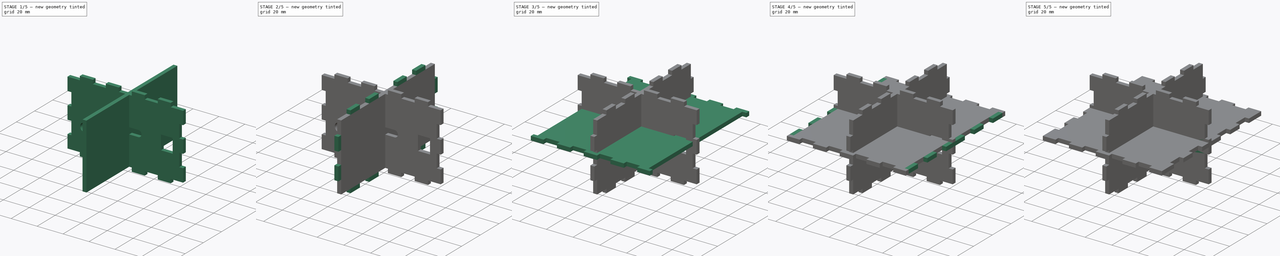
[diagram: build sequence overview — one tinted view per stage of 5, left to right]
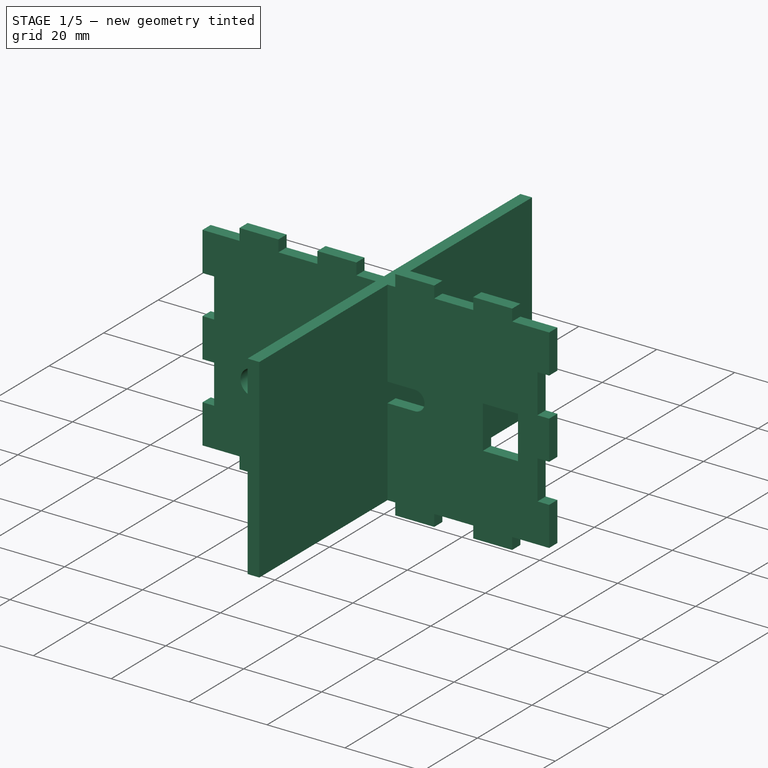
[diagram: stage 1 of 5 — iso view after this stage's code; geometry added in this stage tinted green]
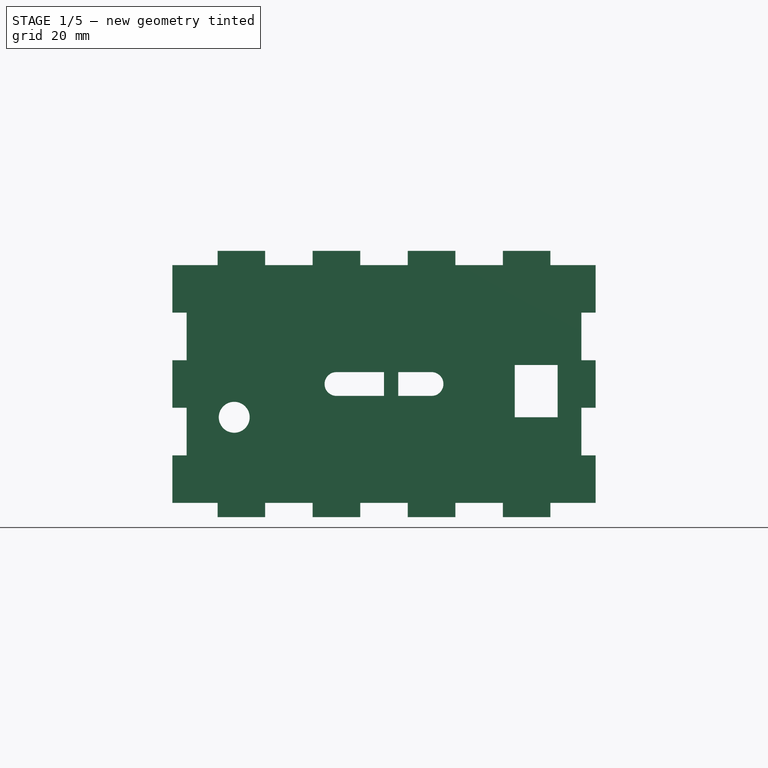
[diagram: stage 1 of 5 — front view after this stage's code; geometry added in this stage tinted green]
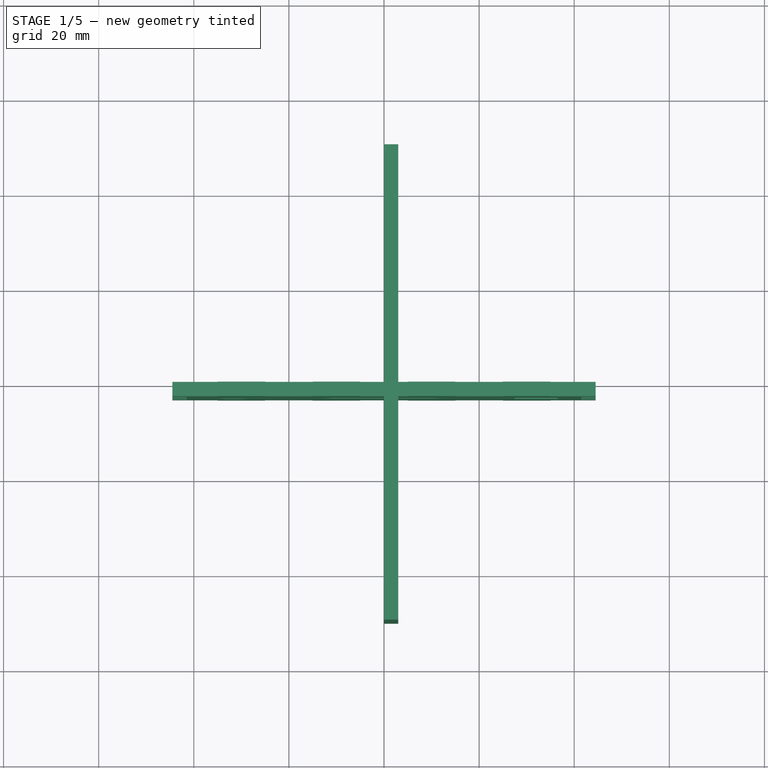
[diagram: stage 1 of 5 — top view after this stage's code; geometry added in this stage tinted green]
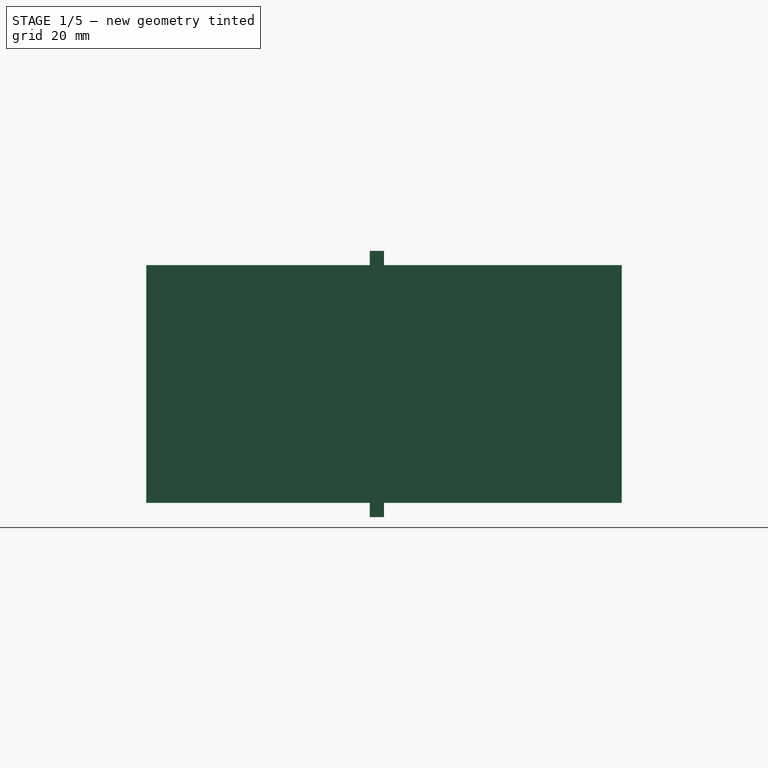
[diagram: stage 1 of 5 — right view after this stage's code; geometry added in this stage tinted green]
FCSTD DOCUMENT  (FreeCAD 2021.1015R24301 +3962 (Git))
Label: project
License: All rights reserved
LicenseURL: http://en.wikipedia.org/wiki/All_rights_reserved
objects: PartDesign::Mirrored×20, Sketcher::SketchObject×18, PartDesign::Pad×18, PartDesign::MultiTransform×12, PartDesign::Body×6, TechDraw::DrawSVGTemplate×6, TechDraw::DrawViewPart×6, TechDraw::DrawPage×6, PartDesign::LinearPattern×4, App::Part×1
note: 186 computed .brp shape members not serialized (recipe doc carries the construction recipe); baked Part::Feature solids carry a one-line shape summary decoded from their .brp

FEATURE [PartDesign::LinearPattern] LinearPattern003
  CopyShape = false
  Direction = -> X_Axis002
  Length = 60
  NewSolid = false
  Occurrences = 4
  ParallelTransform = true
  Placement = pos=(0,0,0) rot=(1,0,0;1.5708rad)
  Reversed = true
  SubTransform = true
  Suppress = false
FEATURE [PartDesign::Mirrored] Mirrored002
  CopyShape = false
  MirrorPlane = -> YZ_Plane002
  NewSolid = false
  ParallelTransform = true
  Placement = pos=(0,0,0) rot=(1,0,0;1.5708rad)
  SubTransform = true
  Suppress = false
FEATURE [PartDesign::Mirrored] Mirrored003
  CopyShape = false
  MirrorPlane = -> XY_Plane002
  NewSolid = false
  ParallelTransform = true
  Placement = pos=(0,0,0) rot=(1,0,0;1.5708rad)
  SubTransform = true
  Suppress = false
FEATURE [Sketcher::SketchObject] Sketch004
  FullyConstrained = true
  MapMode = 5
  Placement = pos=(0,0,0) rot=(1,0,0;1.5708rad)
  Support = -> [XZ_Plane002]
  sketch-geometry (13):
    g0: LineSegment StartX=-41.5 StartY=25 StartZ=0 EndX=41.5 EndY=25 EndZ=0
    g1: LineSegment StartX=41.5 StartY=25 StartZ=0 EndX=41.5 EndY=-25 EndZ=0
    g2: LineSegment StartX=41.5 StartY=-25 StartZ=0 EndX=-41.5 EndY=-25 EndZ=0
    g3: LineSegment StartX=-41.5 StartY=-25 StartZ=0 EndX=-41.5 EndY=25 EndZ=0
    g4: Circle CenterX=-31.5 CenterY=-7 CenterZ=0 NormalX=0 NormalY=0 NormalZ=1 AngleXU=0 Radius=3.25
    g5: LineSegment StartX=27.5 StartY=4 StartZ=0 EndX=36.5 EndY=4 EndZ=0
    g6: LineSegment StartX=36.5 StartY=4 StartZ=0 EndX=36.5 EndY=-7 EndZ=0
    g7: LineSegment StartX=36.5 StartY=-7 StartZ=0 EndX=27.5 EndY=-7 EndZ=0
    g8: LineSegment StartX=27.5 StartY=-7 StartZ=0 EndX=27.5 EndY=4 EndZ=0
    g9: ArcOfCircle CenterX=-10 CenterY=0 CenterZ=0 NormalX=0 NormalY=0 NormalZ=1 AngleXU=0 Radius=2.5 StartAngle=1.5708 EndAngle=4.71239
    g10: ArcOfCircle CenterX=10 CenterY=0 CenterZ=0 NormalX=0 NormalY=0 NormalZ=1 AngleXU=0 Radius=2.5 StartAngle=4.71239 EndAngle=7.85398
    g11: LineSegment StartX=-10 StartY=-2.5 StartZ=0 EndX=10 EndY=-2.5 EndZ=0
    g12: LineSegment StartX=-10 StartY=2.5 StartZ=0 EndX=10 EndY=2.5 EndZ=0
  constraints (35):
    c: Coincident(g0,g1)
    c: Coincident(g1,g2)
    c: Coincident(g2,g3)
    c: Coincident(g3,g0)
    c: Horizontal(g0)
    c: Vertical(g1)
    c: Vertical(g3)
    c: DistanceX(g2,g4) = 10
    c: DistanceX(g2,g2) = 83
    c: Diameter(g4) = 6.5
    c: DistanceY(g1,g1) = 50
    c: DistanceY(g2,g4) = 18
    c: Coincident(g5,g6)
    c: Coincident(g6,g7)
    c: Coincident(g7,g8)
    c: Coincident(g8,g5)
    c: Horizontal(g5)
    c: Horizontal(g7)
    c: Vertical(g6)
    c: Vertical(g8)
    c: DistanceX(g2,g5) = 69
    c: Symmetric(g0,g1,g-1)
    c: Horizontal(g2)
    c: DistanceX(g5,g5) = 9
    c: DistanceY(g6,g6) = 11
    c: DistanceY(g2,g6) = 18
    c: Tangent(g9,g12) = 1.5708
    c: Tangent(g9,g11) = -1.5708
    c: Tangent(g11,g10) = -1.5708
    c: Tangent(g12,g10) = 1.5708
    c: Horizontal(g11)
    c: DistanceX(g9,g10) = 20
    c: Radius(g10) = 2.5
    c: PointOnObject(g10,g-1)
    c: Symmetric(g10,g9,g-2)
FEATURE [PartDesign::Pad] Pad004
  ClaimChildren = false
  Direction = (1,1,1)
  Fit = 0
  FitJoin = 0
  InnerFit = 0
  InnerFitJoin = 0
  InnerTaperAngle = 0
  InnerTaperAngleRev = 0
  Length = 3
  Length2 = 100
  Linearize = true
  NewSolid = false
  Placement = pos=(0,0,0) rot=(1,0,0;1.5708rad)
  Profile = -> Sketch004
  Suppress = false
  Type = 0
  _ProfileBasedVersion = 1
FEATURE [Sketcher::SketchObject] Sketch005
  ExternalGeometry = -> [Pad004]
  FullyConstrained = true
  MapMode = 5
  Placement = pos=(41.5,0,0) rot=(0.707107,0,0.707107;3.14159rad)
  Support = -> [Pad004]
  sketch-geometry (4):
    g0: LineSegment StartX=-25 StartY=3 StartZ=0 EndX=-15 EndY=3 EndZ=0
    g1: LineSegment StartX=-15 StartY=3 StartZ=0 EndX=-15 EndY=9.8e-15 EndZ=0
    g2: LineSegment StartX=-15 StartY=9.8e-15 StartZ=0 EndX=-25 EndY=9.8e-15 EndZ=0
    g3: LineSegment StartX=-25 StartY=9.8e-15 StartZ=0 EndX=-25 EndY=3 EndZ=0
  constraints (11):
    c: Coincident(g0,g1)
    c: Coincident(g1,g2)
    c: Coincident(g2,g3)
    c: Coincident(g3,g0)
    c: Horizontal(g0)
    c: Horizontal(g2)
    c: Vertical(g1)
    c: Vertical(g3)
    c: Coincident(g0,g-3)
    c: PointOnObject(g1,g-4)
    c: DistanceX(g0,g0) = 10
FEATURE [PartDesign::LinearPattern] LinearPattern002
  CopyShape = false
  Direction = -> Sketch005 [H_Axis]
  Length = 40
  NewSolid = false
  Occurrences = 3
  ParallelTransform = true
  Placement = pos=(0,0,0) rot=(1,0,0;1.5708rad)
  SubTransform = true
  Suppress = false
FEATURE [PartDesign::Pad] Pad005
  BaseFeature = -> Pad004
  ClaimChildren = false
  Direction = (1,1,1)
  Fit = 0
  FitJoin = 0
  InnerFit = 0
  InnerFitJoin = 0
  InnerTaperAngle = 0
  InnerTaperAngleRev = 0
  Length = 3
  Length2 = 100
  Linearize = true
  NewSolid = false
  Placement = pos=(0,0,0) rot=(1,0,0;1.5708rad)
  Profile = -> Sketch005
  Suppress = false
  Type = 0
  _ProfileBasedVersion = 1
FEATURE [PartDesign::MultiTransform] MultiTransform002
  BaseFeature = -> Pad005
  CopyShape = false
  NewSolid = false
  OriginalSubs = -> [Pad005]
  Originals = -> [Pad005]
  ParallelTransform = true
  Placement = pos=(0,0,0) rot=(1,0,0;1.5708rad)
  SubTransform = true
  Suppress = false
  Transformations = -> [Mirrored002,LinearPattern002]
FEATURE [Sketcher::SketchObject] Sketch006
  ExternalGeometry = -> [MultiTransform002]
  FullyConstrained = true
  MapMode = 5
  Placement = pos=(0,-5.6e-15,25) rot=(0,0,1;3.14159rad)
  Support = -> [MultiTransform002]
  sketch-geometry (4):
    g0: LineSegment StartX=-35 StartY=3 StartZ=0 EndX=-25 EndY=3 EndZ=0
    g1: LineSegment StartX=-25 StartY=3 StartZ=0 EndX=-25 EndY=3.2e-14 EndZ=0
    g2: LineSegment StartX=-25 StartY=3.2e-14 StartZ=0 EndX=-35 EndY=3.2e-14 EndZ=0
    g3: LineSegment StartX=-35 StartY=3.2e-14 StartZ=0 EndX=-35 EndY=3 EndZ=0
  constraints (12):
    c: Coincident(g0,g1)
    c: Coincident(g1,g2)
    c: Coincident(g2,g3)
    c: Coincident(g3,g0)
    c: Horizontal(g0)
    c: Horizontal(g2)
    c: Vertical(g1)
    c: Vertical(g3)
    c: Horizontal(g0,g-3)
    c: Horizontal(g2,g-3)
    c: DistanceX(g0,g0) = 10
    c: DistanceX(g-3,g0) = 9.5
FEATURE [PartDesign::Pad] Pad006
  BaseFeature = -> MultiTransform002
  ClaimChildren = false
  Direction = (1,1,1)
  Fit = 0
  FitJoin = 0
  InnerFit = 0
  InnerFitJoin = 0
  InnerTaperAngle = 0
  InnerTaperAngleRev = 0
  Length = 3
  Length2 = 100
  Linearize = true
  NewSolid = false
  Placement = pos=(0,0,0) rot=(1,0,0;1.5708rad)
  Profile = -> Sketch006
  Suppress = false
  Type = 0
  _ProfileBasedVersion = 1
FEATURE [PartDesign::MultiTransform] MultiTransform003
  BaseFeature = -> Pad006
  CopyShape = false
  NewSolid = false
  OriginalSubs = -> [Pad006]
  Originals = -> [Pad006]
  ParallelTransform = true
  Placement = pos=(0,0,0) rot=(1,0,0;1.5708rad)
  SubTransform = true
  Suppress = false
  Transformations = -> [Mirrored003,LinearPattern003]
FEATURE [PartDesign::Body] Body004  label="Top Face"
  AutoGroupSolids = false
  ExportMode = 0
  Group = -> [Sketch012,Pad012,Sketch013,Pad013,MultiTransform008,Mirrored012,Mirrored013,Sketch014,Pad014,MultiTransform009,Mirrored014,Mirrored015]
  Origin = -> Origin005
  Placement = pos=(0,0,25) rot=(0,0,1;0rad)
  Tip = -> MultiTransform009
  _ExportChildren = -> [Pad012,Pad013,MultiTransform008,Pad014,MultiTransform009]
  _GroupVersion = 1
FEATURE [PartDesign::Mirrored] Mirrored017
  CopyShape = false
  MirrorPlane = -> XZ_Plane005
  NewSolid = false
  ParallelTransform = true
  Placement = pos=(0,0,0) rot=(0.57735,0.57735,0.57735;2.0944rad)
  SubTransform = true
  Suppress = false
FEATURE [PartDesign::Mirrored] Mirrored019
  CopyShape = false
  MirrorPlane = -> XY_Plane005
  NewSolid = false
  ParallelTransform = true
  Placement = pos=(0,0,0) rot=(0.57735,0.57735,0.57735;2.0944rad)
  SubTransform = true
  Suppress = false
FEATURE [Sketcher::SketchObject] Sketch015
  FullyConstrained = true
  MapMode = 5
  Placement = pos=(0,0,0) rot=(0.57735,0.57735,0.57735;2.0944rad)
  Support = -> [YZ_Plane005]
  sketch-geometry (4):
    g0: LineSegment StartX=-50 StartY=25 StartZ=0 EndX=50 EndY=25 EndZ=0
    g1: LineSegment StartX=50 StartY=25 StartZ=0 EndX=50 EndY=-25 EndZ=0
    g2: LineSegment StartX=50 StartY=-25 StartZ=0 EndX=-50 EndY=-25 EndZ=0
    g3: LineSegment StartX=-50 StartY=-25 StartZ=0 EndX=-50 EndY=25 EndZ=0
  constraints (11):
    c: Coincident(g0,g1)
    c: Coincident(g1,g2)
    c: Coincident(g2,g3)
    c: Coincident(g3,g0)
    c: Horizontal(g0)
    c: Horizontal(g2)
    c: Vertical(g1)
    c: Vertical(g3)
    c: Symmetric(g1,g0,g-1)
    c: DistanceY(g1,g1) = 50
    c: DistanceX(g0,g0) = 100
FEATURE [PartDesign::Pad] Pad015
  ClaimChildren = false
  Direction = (1,1,1)
  Fit = 0
  FitJoin = 0
  InnerFit = 0
  InnerFitJoin = 0
  InnerTaperAngle = 0
  InnerTaperAngleRev = 0
  Length = 3
  Length2 = 100
  Linearize = true
  NewSolid = false
  Placement = pos=(0,0,0) rot=(0.57735,0.57735,0.57735;2.0944rad)
  Profile = -> Sketch015
  Suppress = false
  Type = 0
  _ProfileBasedVersion = 1
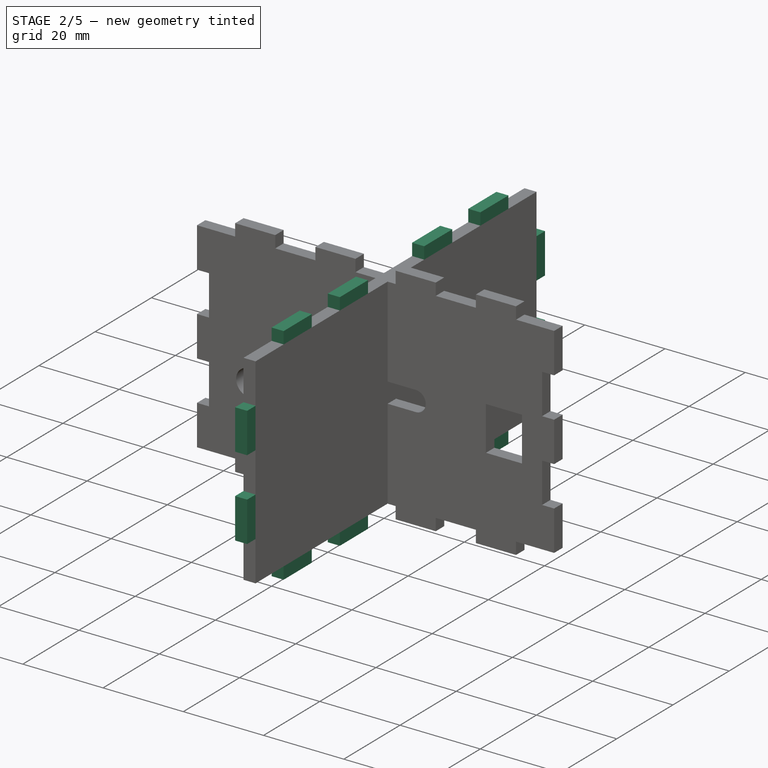
[diagram: stage 2 of 5 — iso view after this stage's code; geometry added in this stage tinted green]
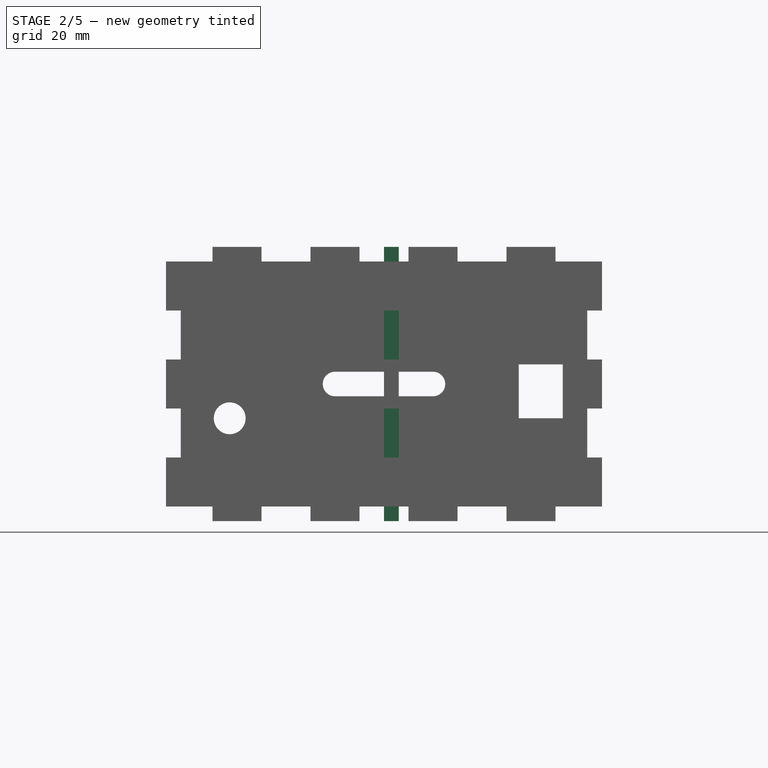
[diagram: stage 2 of 5 — front view after this stage's code; geometry added in this stage tinted green]
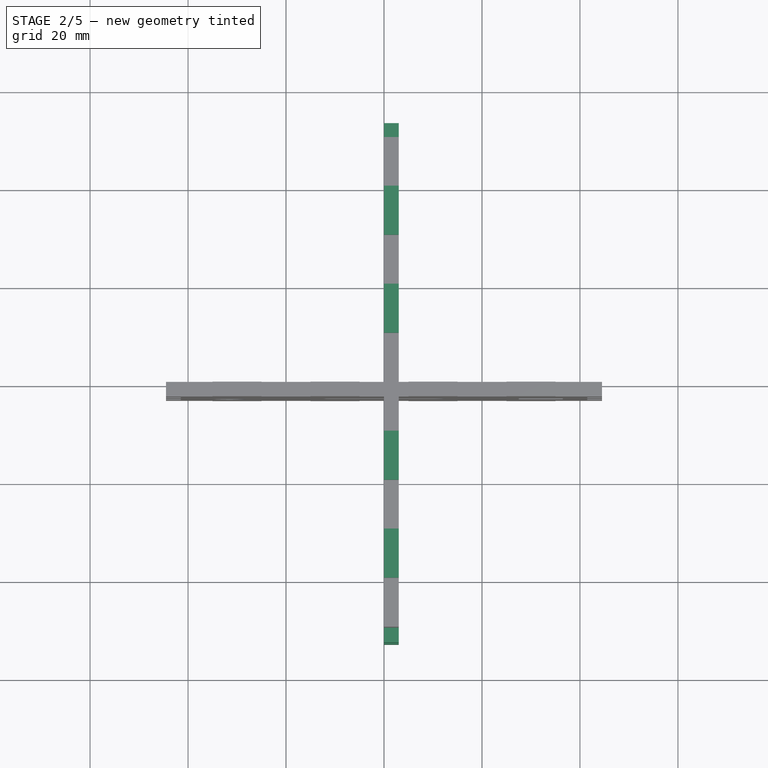
[diagram: stage 2 of 5 — top view after this stage's code; geometry added in this stage tinted green]
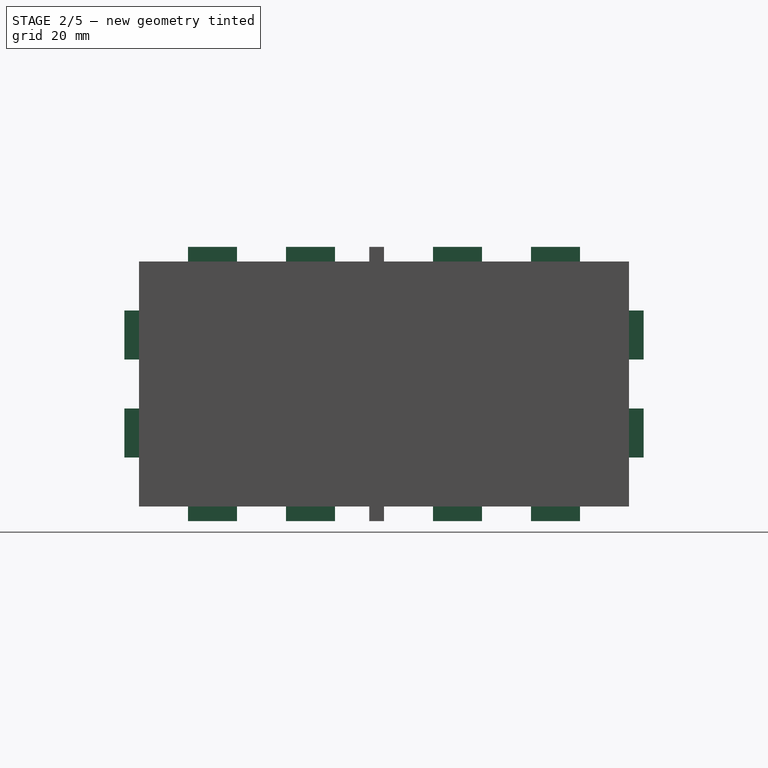
[diagram: stage 2 of 5 — right view after this stage's code; geometry added in this stage tinted green]
FEATURE [PartDesign::Body] Body001  label="Bottom Face"
  AutoGroupSolids = false
  ExportMode = 0
  Group = -> [Sketch003,Pad003,Sketch007,Pad007,MultiTransform004,Mirrored004,Mirrored005,Sketch008,Pad008,MultiTransform005,Mirrored006,Mirrored007]
  Origin = -> Origin002
  Placement = pos=(0,0,-28) rot=(0,0,1;0rad)
  Tip = -> MultiTransform005
  _ExportChildren = -> [Pad003,Pad007,MultiTransform004,Pad008,MultiTransform005]
  _GroupVersion = 1
FEATURE [Sketcher::SketchObject] Sketch009
  FullyConstrained = true
  MapMode = 5
  Placement = pos=(0,0,0) rot=(0.57735,0.57735,0.57735;2.0944rad)
  Support = -> [YZ_Plane003]
  sketch-geometry (4):
    g0: LineSegment StartX=-50 StartY=25 StartZ=0 EndX=50 EndY=25 EndZ=0
    g1: LineSegment StartX=50 StartY=25 StartZ=0 EndX=50 EndY=-25 EndZ=0
    g2: LineSegment StartX=50 StartY=-25 StartZ=0 EndX=-50 EndY=-25 EndZ=0
    g3: LineSegment StartX=-50 StartY=-25 StartZ=0 EndX=-50 EndY=25 EndZ=0
  constraints (11):
    c: Coincident(g0,g1)
    c: Coincident(g1,g2)
    c: Coincident(g2,g3)
    c: Coincident(g3,g0)
    c: Horizontal(g0)
    c: Horizontal(g2)
    c: Vertical(g1)
    c: Vertical(g3)
    c: Symmetric(g1,g0,g-1)
    c: DistanceY(g1,g1) = 50
    c: DistanceX(g0,g0) = 100
FEATURE [PartDesign::Pad] Pad009
  ClaimChildren = false
  Direction = (1,1,1)
  Fit = 0
  FitJoin = 0
  InnerFit = 0
  InnerFitJoin = 0
  InnerTaperAngle = 0
  InnerTaperAngleRev = 0
  Length = 3
  Length2 = 100
  Linearize = true
  NewSolid = false
  Placement = pos=(0,0,0) rot=(0.57735,0.57735,0.57735;2.0944rad)
  Profile = -> Sketch009
  Suppress = false
  Type = 0
  _ProfileBasedVersion = 1
FEATURE [Sketcher::SketchObject] Sketch010
  ExternalGeometry = -> [Pad009]
  FullyConstrained = true
  MapMode = 5
  Placement = pos=(-2.2e-14,-50,1.1e-14) rot=(-0.57735,-0.57735,0.57735;4.18879rad)
  Support = -> [Pad009]
  sketch-geometry (4):
    g0: LineSegment StartX=5 StartY=3 StartZ=0 EndX=15 EndY=3 EndZ=0
    g1: LineSegment StartX=15 StartY=3 StartZ=0 EndX=15 EndY=1.29e-14 EndZ=0
    g2: LineSegment StartX=15 StartY=1.3e-14 StartZ=0 EndX=5 EndY=1.3e-14 EndZ=0
    g3: LineSegment StartX=5 StartY=1.3e-14 StartZ=0 EndX=5 EndY=3 EndZ=0
  constraints (12):
    c: Coincident(g0,g1)
    c: Coincident(g1,g2)
    c: Coincident(g2,g3)
    c: Coincident(g3,g0)
    c: Horizontal(g0)
    c: Horizontal(g2)
    c: Vertical(g1)
    c: Vertical(g3)
    c: PointOnObject(g0,g-3)
    c: PointOnObject(g2,g-4)
    c: DistanceX(g0,g0) = 10
    c: DistanceX(g-1,g0) = 5
FEATURE [PartDesign::Pad] Pad010
  BaseFeature = -> Pad009
  ClaimChildren = false
  Direction = (1,1,1)
  Fit = 0
  FitJoin = 0
  InnerFit = 0
  InnerFitJoin = 0
  InnerTaperAngle = 0
  InnerTaperAngleRev = 0
  Length = 3
  Length2 = 100
  Linearize = true
  NewSolid = false
  Placement = pos=(0,0,0) rot=(0.57735,0.57735,0.57735;2.0944rad)
  Profile = -> Sketch010
  Suppress = false
  Type = 0
  _ProfileBasedVersion = 1
FEATURE [Sketcher::SketchObject] Sketch016
  ExternalGeometry = -> [Pad015]
  FullyConstrained = true
  MapMode = 5
  Placement = pos=(-2.2e-14,-50,1.1e-14) rot=(-0.57735,-0.57735,0.57735;4.18879rad)
  Support = -> [Pad015]
  sketch-geometry (4):
    g0: LineSegment StartX=5 StartY=3 StartZ=0 EndX=15 EndY=3 EndZ=0
    g1: LineSegment StartX=15 StartY=3 StartZ=0 EndX=15 EndY=1.29e-14 EndZ=0
    g2: LineSegment StartX=15 StartY=1.3e-14 StartZ=0 EndX=5 EndY=1.3e-14 EndZ=0
    g3: LineSegment StartX=5 StartY=1.3e-14 StartZ=0 EndX=5 EndY=3 EndZ=0
  constraints (12):
    c: Coincident(g0,g1)
    c: Coincident(g1,g2)
    c: Coincident(g2,g3)
    c: Coincident(g3,g0)
    c: Horizontal(g0)
    c: Horizontal(g2)
    c: Vertical(g1)
    c: Vertical(g3)
    c: PointOnObject(g0,g-3)
    c: PointOnObject(g2,g-4)
    c: DistanceX(g0,g0) = 10
    c: DistanceX(g-1,g0) = 5
FEATURE [PartDesign::Mirrored] Mirrored016
  CopyShape = false
  MirrorPlane = -> Sketch016 [V_Axis]
  NewSolid = false
  ParallelTransform = true
  Placement = pos=(0,0,0) rot=(0.57735,0.57735,0.57735;2.0944rad)
  SubTransform = true
  Suppress = false
FEATURE [PartDesign::Pad] Pad016
  BaseFeature = -> Pad015
  ClaimChildren = false
  Direction = (1,1,1)
  Fit = 0
  FitJoin = 0
  InnerFit = 0
  InnerFitJoin = 0
  InnerTaperAngle = 0
  InnerTaperAngleRev = 0
  Length = 3
  Length2 = 100
  Linearize = true
  NewSolid = false
  Placement = pos=(0,0,0) rot=(0.57735,0.57735,0.57735;2.0944rad)
  Profile = -> Sketch016
  Suppress = false
  Type = 0
  _ProfileBasedVersion = 1
FEATURE [PartDesign::MultiTransform] MultiTransform010
  BaseFeature = -> Pad016
  CopyShape = false
  NewSolid = false
  OriginalSubs = -> [Pad016]
  Originals = -> [Pad016]
  ParallelTransform = true
  Placement = pos=(0,0,0) rot=(0.57735,0.57735,0.57735;2.0944rad)
  SubTransform = true
  Suppress = false
  Transformations = -> [Mirrored016,Mirrored017]
FEATURE [Sketcher::SketchObject] Sketch017
  ExternalGeometry = -> [MultiTransform010]
  FullyConstrained = true
  MapMode = 5
  Placement = pos=(7e-15,-1.1e-14,-25) rot=(0.707107,0.707107,0;3.14159rad)
  Support = -> [MultiTransform010]
  sketch-geometry (8):
    g0: LineSegment StartX=-20 StartY=3 StartZ=0 EndX=-10 EndY=3 EndZ=0
    g1: LineSegment StartX=-10 StartY=3 StartZ=0 EndX=-10 EndY=4e-15 EndZ=0
    g2: LineSegment StartX=-10 StartY=4e-15 StartZ=0 EndX=-20 EndY=4e-15 EndZ=0
    g3: LineSegment StartX=-20 StartY=4e-15 StartZ=0 EndX=-20 EndY=3 EndZ=0
    g4: LineSegment StartX=-40 StartY=3 StartZ=0 EndX=-30 EndY=3 EndZ=0
    g5: LineSegment StartX=-30 StartY=3 StartZ=0 EndX=-30 EndY=4e-15 EndZ=0
    g6: LineSegment StartX=-30 StartY=4e-15 StartZ=0 EndX=-40 EndY=4e-15 EndZ=0
    g7: LineSegment StartX=-40 StartY=4e-15 StartZ=0 EndX=-40 EndY=3 EndZ=0
  constraints (24):
    c: Coincident(g0,g1)
    c: Coincident(g1,g2)
    c: Coincident(g2,g3)
    c: Coincident(g3,g0)
    c: Horizontal(g0)
    c: Horizontal(g2)
    c: Vertical(g1)
    c: Vertical(g3)
    c: Coincident(g4,g5)
    c: Coincident(g5,g6)
    c: Coincident(g6,g7)
    c: Coincident(g7,g4)
    c: Horizontal(g4)
    c: Horizontal(g6)
    c: Vertical(g5)
    c: Vertical(g7)
    c: Horizontal(g4,g0)
    c: Horizontal(g5,g2)
    c: PointOnObject(g6,g-4)
    c: PointOnObject(g4,g-3)
    c: DistanceX(g4,g4) = 10
    c: DistanceX(g4,g0) = 10
    c: DistanceX(g0,g0) = 10
    c: DistanceX(g-3,g4) = 10
FEATURE [PartDesign::Mirrored] Mirrored018
  CopyShape = false
  MirrorPlane = -> Sketch017 [V_Axis]
  NewSolid = false
  ParallelTransform = true
  Placement = pos=(0,0,0) rot=(0.57735,0.57735,0.57735;2.0944rad)
  SubTransform = true
  Suppress = false
FEATURE [PartDesign::Pad] Pad017
  BaseFeature = -> MultiTransform010
  ClaimChildren = false
  Direction = (1,1,1)
  Fit = 0
  FitJoin = 0
  InnerFit = 0
  InnerFitJoin = 0
  InnerTaperAngle = 0
  InnerTaperAngleRev = 0
  Length = 3
  Length2 = 100
  Linearize = true
  NewSolid = false
  Placement = pos=(0,0,0) rot=(0.57735,0.57735,0.57735;2.0944rad)
  Profile = -> Sketch017
  Suppress = false
  Type = 0
  _ProfileBasedVersion = 1
FEATURE [PartDesign::MultiTransform] MultiTransform011
  BaseFeature = -> Pad017
  CopyShape = false
  NewSolid = false
  OriginalSubs = -> [Pad017]
  Originals = -> [Pad017]
  ParallelTransform = true
  Placement = pos=(0,0,0) rot=(0.57735,0.57735,0.57735;2.0944rad)
  SubTransform = true
  Suppress = false
  Transformations = -> [Mirrored018,Mirrored019]
FEATURE [PartDesign::Body] Body005  label="Left Face"
  AutoGroupSolids = false
  ExportMode = 0
  Group = -> [Sketch015,Pad015,Sketch016,Pad016,MultiTransform010,Mirrored016,Mirrored017,Sketch017,Pad017,MultiTransform011,Mirrored018,Mirrored019]
  Origin = -> Origin006
  Placement = pos=(-44.5,0,0) rot=(0,0,1;0rad)
  Tip = -> MultiTransform011
  _ExportChildren = -> [Pad015,Pad016,MultiTransform010,Pad017,MultiTransform011]
  _GroupVersion = 1
FEATURE [App::Part] Part
  ExportMode = 1
  Group = -> [Body,Body001,Body002,Body003,Body004,Body005]
  Origin = -> Origin
  _ExportChildren = -> [Body,Body001,Body002,Body003,Body004,Body005]
  _GroupVersion = 1
FEATURE [TechDraw::DrawSVGTemplate] Template
  EditableTexts = Designed_by_Name=Designed by Name; Drawing_number=Drawing number; FC-Date=Date; FC-SC=Scale; FC-SH=Sheet; FC-Title=Title; Subtitle=Subtitle; Weight=Weight
  Height = 210
  Orientation = 1
  Width = 297
FEATURE [TechDraw::DrawSVGTemplate] Template001 .. Template005  x5 (patterned run collapsed; names and placements below)
  EditableTexts = Designed_by_Name=Designed by Name; Drawing_number=Drawing number; FC-Date=Date; FC-SC=Scale; FC-SH=Sheet; FC-Title=Title; Subtitle=Subtitle; Weight=Weight
  Height = 210
  Orientation = 1
  Width = 297
FEATURE [TechDraw::DrawViewPart] View
  CoarseView = true
  Direction = (0,1,0)
  Focus = 100
  HardHidden = false
  IsoCount = 0
  IsoHidden = false
  IsoVisible = false
  LockPosition = false
  Perspective = false
  Rotation = 0
  ScaleType = 0
  SeamHidden = true
  SeamVisible = false
  SmoothHidden = false
  SmoothVisible = true
  Source = -> [Body]
  X = 118.823
  XDirection = (-1,0,0)
  Y = 134.677
FEATURE [TechDraw::DrawPage] Page  label="Front Design"
  KeepUpdated = true
  NextBalloonIndex = 1
  ProjectionType = 0
  Template = -> Template
  Views = -> [View]
FEATURE [TechDraw::DrawViewPart] View002
  CoarseView = false
  Direction = (0,0,1)
  Focus = 100
  HardHidden = false
  IsoCount = 0
  IsoHidden = false
  IsoVisible = false
  LockPosition = false
  Perspective = false
  Rotation = 0
  ScaleType = 0
  SeamHidden = false
  SeamVisible = true
  SmoothHidden = false
  SmoothVisible = true
  Source = -> [Body004]
  X = 84.6198
  XDirection = (-1,0,0)
  Y = 129.395
FEATURE [TechDraw::DrawPage] Page004  label="Top Design"
  KeepUpdated = true
  NextBalloonIndex = 1
  ProjectionType = 0
  Template = -> Template004
  Views = -> [View002]
FEATURE [TechDraw::DrawViewPart] View003
  CoarseView = false
  Direction = (0,0,1)
  Focus = 100
  HardHidden = false
  IsoCount = 0
  IsoHidden = false
  IsoVisible = false
  LockPosition = false
  Perspective = false
  Rotation = 0
  ScaleType = 0
  SeamHidden = false
  SeamVisible = true
  SmoothHidden = false
  SmoothVisible = true
  Source = -> [Body001]
  X = 89.1467
  XDirection = (-1,0,0)
  Y = 125.12
FEATURE [TechDraw::DrawPage] Page001  label="Bottom Design"
  KeepUpdated = true
  NextBalloonIndex = 1
  ProjectionType = 0
  Template = -> Template001
  Views = -> [View003]
FEATURE [TechDraw::DrawViewPart] View004
  CoarseView = false
  Direction = (-1,0,0)
  Focus = 100
  HardHidden = false
  IsoCount = 0
  IsoHidden = false
  IsoVisible = false
  LockPosition = false
  Perspective = false
  Rotation = 0
  ScaleType = 0
  SeamHidden = false
  SeamVisible = true
  SmoothHidden = false
  SmoothVisible = true
  Source = -> [Body003]
  X = 63.7455
  XDirection = (0,0,-1)
  Y = 128.641
FEATURE [TechDraw::DrawPage] Page003  label="Right Design"
  KeepUpdated = true
  NextBalloonIndex = 1
  ProjectionType = 0
  Template = -> Template003
  Views = -> [View004]
FEATURE [TechDraw::DrawViewPart] View005
  CoarseView = false
  Direction = (-1,0,0)
  Focus = 100
  HardHidden = false
  IsoCount = 0
  IsoHidden = false
  IsoVisible = false
  LockPosition = false
  Perspective = false
  Rotation = 0
  ScaleType = 0
  SeamHidden = false
  SeamVisible = true
  SmoothHidden = false
  SmoothVisible = true
  Source = -> [Body005]
  X = 83.3623
  XDirection = (0,0,-1)
  Y = 122.102
FEATURE [TechDraw::DrawPage] Page005  label="Left Design"
  KeepUpdated = true
  NextBalloonIndex = 1
  ProjectionType = 0
  Template = -> Template005
  Views = -> [View005]
FEATURE [TechDraw::DrawViewPart] View006
  CoarseView = false
  Direction = (0,1,0)
  Focus = 100
  HardHidden = false
  IsoCount = 0
  IsoHidden = false
  IsoVisible = false
  LockPosition = false
  Perspective = false
  Rotation = 0
  ScaleType = 0
  SeamHidden = false
  SeamVisible = true
  SmoothHidden = false
  SmoothVisible = true
  Source = -> [Body002]
  X = 110.775
  XDirection = (-1,0,0)
  Y = 129.898
FEATURE [TechDraw::DrawPage] Page002  label="Back Design"
  KeepUpdated = true
  NextBalloonIndex = 1
  ProjectionType = 0
  Template = -> Template002
  Views = -> [View006]
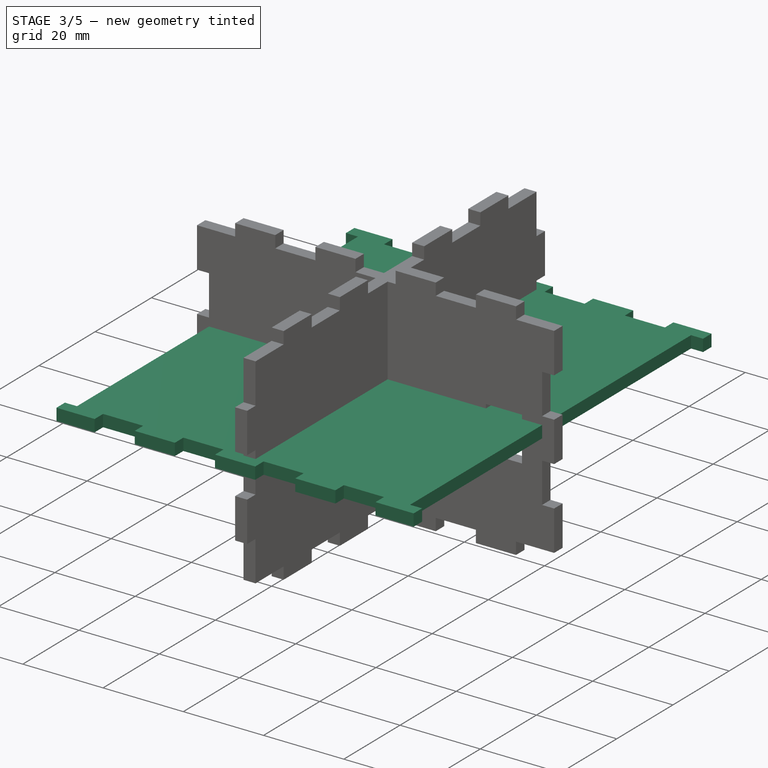
[diagram: stage 3 of 5 — iso view after this stage's code; geometry added in this stage tinted green]
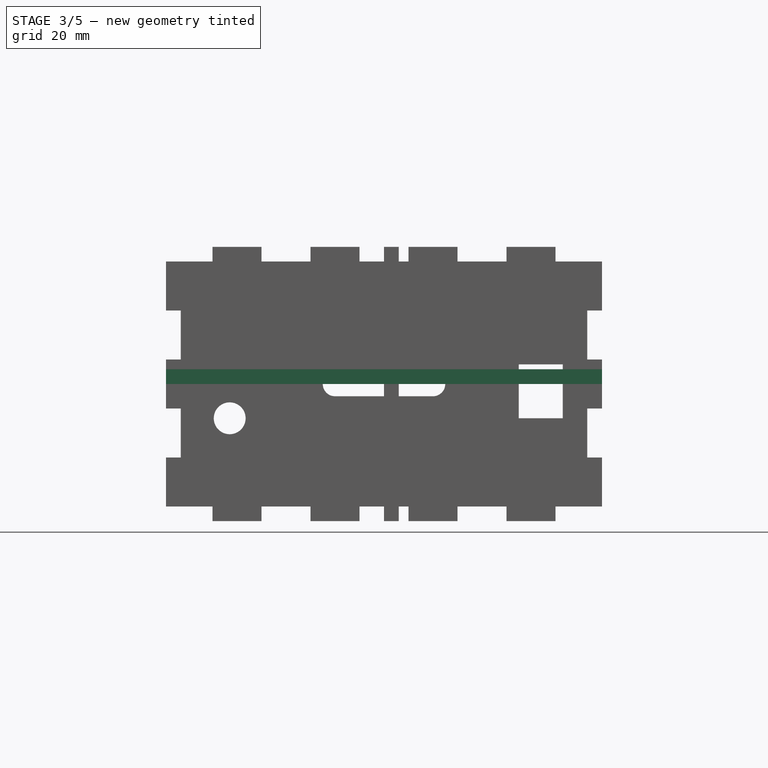
[diagram: stage 3 of 5 — front view after this stage's code; geometry added in this stage tinted green]
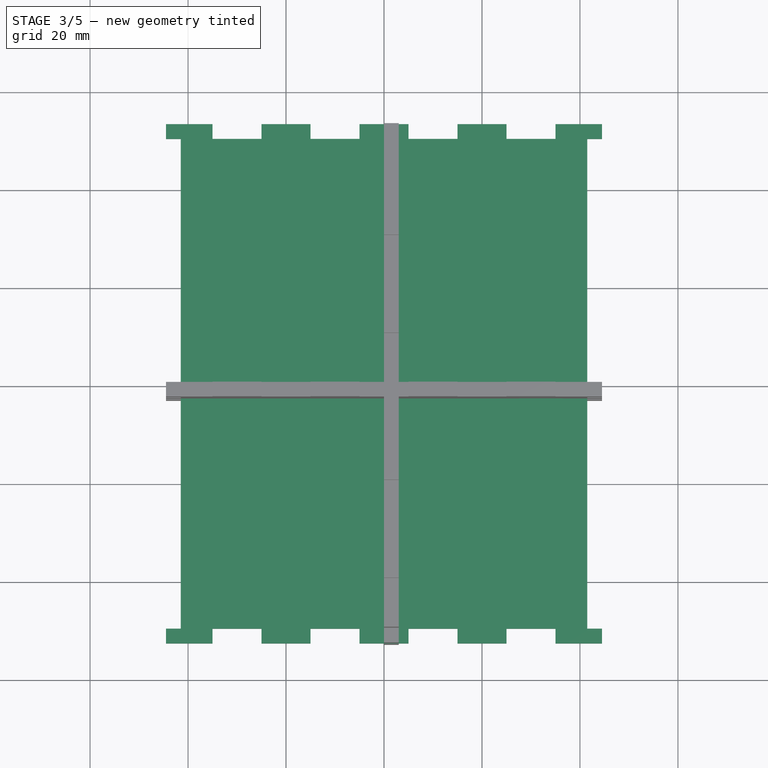
[diagram: stage 3 of 5 — top view after this stage's code; geometry added in this stage tinted green]
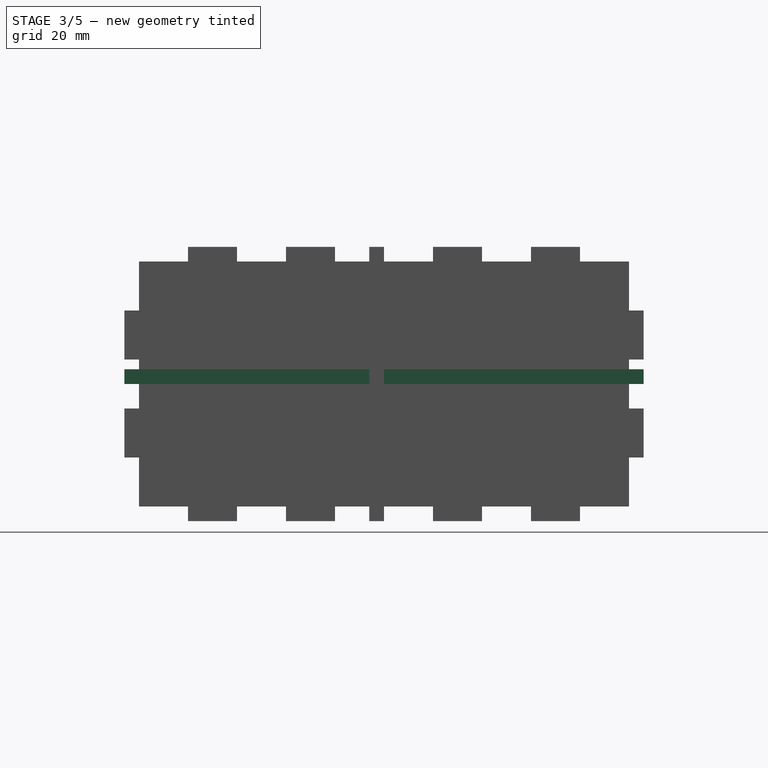
[diagram: stage 3 of 5 — right view after this stage's code; geometry added in this stage tinted green]
FEATURE [PartDesign::Body] Body  label="Front Face"
  AutoGroupSolids = false
  ExportMode = 0
  Group = -> [Sketch,Pad,Sketch001,Pad001,MultiTransform,Mirrored,LinearPattern,Sketch002,Pad002,MultiTransform001,Mirrored001,LinearPattern001]
  Origin = -> Origin001
  Placement = pos=(0,-50,0) rot=(0,0,1;0rad)
  Tip = -> MultiTransform001
  _ExportChildren = -> [Pad,Pad001,MultiTransform,Pad002,MultiTransform001]
  _GroupVersion = 1
FEATURE [Sketcher::SketchObject] Sketch003
  FullyConstrained = true
  MapMode = 5
  Support = -> [XY_Plane001]
  sketch-geometry (4):
    g0: LineSegment StartX=-41.5 StartY=50 StartZ=0 EndX=41.5 EndY=50 EndZ=0
    g1: LineSegment StartX=41.5 StartY=50 StartZ=0 EndX=41.5 EndY=-50 EndZ=0
    g2: LineSegment StartX=41.5 StartY=-50 StartZ=0 EndX=-41.5 EndY=-50 EndZ=0
    g3: LineSegment StartX=-41.5 StartY=-50 StartZ=0 EndX=-41.5 EndY=50 EndZ=0
  constraints (11):
    c: Coincident(g0,g1)
    c: Coincident(g1,g2)
    c: Coincident(g2,g3)
    c: Coincident(g3,g0)
    c: Horizontal(g0)
    c: Horizontal(g2)
    c: Vertical(g1)
    c: Vertical(g3)
    c: Symmetric(g1,g0,g-1)
    c: DistanceX(g0,g0) = 83
    c: DistanceY(g1,g1) = 100
FEATURE [PartDesign::Pad] Pad003
  ClaimChildren = false
  Direction = (1,1,1)
  Fit = 0
  FitJoin = 0
  InnerFit = 0
  InnerFitJoin = 0
  InnerTaperAngle = 0
  InnerTaperAngleRev = 0
  Length = 3
  Length2 = 100
  Linearize = true
  NewSolid = false
  Profile = -> Sketch003
  Suppress = false
  Type = 0
  _ProfileBasedVersion = 1
FEATURE [PartDesign::Body] Body002  label="Back Face"
  AutoGroupSolids = false
  ExportMode = 0
  Group = -> [Sketch004,Pad004,Sketch005,Pad005,MultiTransform002,Mirrored002,LinearPattern002,Sketch006,Pad006,MultiTransform003,Mirrored003,LinearPattern003]
  Origin = -> Origin003
  Placement = pos=(0,50,0) rot=(0,0,1;3.14159rad)
  Tip = -> MultiTransform003
  _ExportChildren = -> [Pad004,Pad005,MultiTransform002,Pad006,MultiTransform003]
  _GroupVersion = 1
FEATURE [Sketcher::SketchObject] Sketch007
  ExternalGeometry = -> [Pad003]
  FullyConstrained = true
  MapMode = 5
  Placement = pos=(0,-50,0) rot=(1,0,0;1.5708rad)
  Support = -> [Pad003]
  sketch-geometry (12):
    g0: LineSegment StartX=0 StartY=0 StartZ=0 EndX=5 EndY=0 EndZ=0
    g1: LineSegment StartX=5 StartY=0 StartZ=0 EndX=5 EndY=3 EndZ=0
    g2: LineSegment StartX=5 StartY=3 StartZ=0 EndX=0 EndY=3 EndZ=0
    g3: LineSegment StartX=0 StartY=3 StartZ=0 EndX=0 EndY=0 EndZ=0
    g4: LineSegment StartX=15 StartY=0 StartZ=0 EndX=25 EndY=0 EndZ=0
    g5: LineSegment StartX=25 StartY=0 StartZ=0 EndX=25 EndY=3 EndZ=0
    g6: LineSegment StartX=25 StartY=3 StartZ=0 EndX=15 EndY=3 EndZ=0
    g7: LineSegment StartX=15 StartY=3 StartZ=0 EndX=15 EndY=0 EndZ=0
    g8: LineSegment StartX=35 StartY=0 StartZ=0 EndX=44.5 EndY=0 EndZ=0
    g9: LineSegment StartX=44.5 StartY=0 StartZ=0 EndX=44.5 EndY=3 EndZ=0
    g10: LineSegment StartX=44.5 StartY=3 StartZ=0 EndX=35 EndY=3 EndZ=0
    g11: LineSegment StartX=35 StartY=3 StartZ=0 EndX=35 EndY=0 EndZ=0
  constraints (35):
    c: Coincident(g0,g1)
    c: Coincident(g1,g2)
    c: Coincident(g2,g3)
    c: Coincident(g3,g0)
    c: Horizontal(g0)
    c: Horizontal(g2)
    c: Vertical(g1)
    c: Vertical(g3)
    c: Coincident(g4,g5)
    c: Coincident(g5,g6)
    c: Coincident(g6,g7)
    c: Coincident(g7,g4)
    c: Horizontal(g4)
    c: Horizontal(g6)
    c: Vertical(g5)
    c: Vertical(g7)
    c: Coincident(g8,g9)
    c: Coincident(g9,g10)
    c: Coincident(g10,g11)
    c: Coincident(g11,g8)
    c: Horizontal(g8)
    c: Horizontal(g10)
    c: Vertical(g9)
    c: Vertical(g11)
    c: PointOnObject(g9,g-4)
    c: PointOnObject(g8,g-3)
    c: PointOnObject(g5,g-4)
    c: PointOnObject(g4,g-3)
    c: PointOnObject(g1,g-4)
    c: Coincident(g0,g-1)
    c: DistanceX(g0,g0) = 5
    c: DistanceX(g0,g4) = 10
    c: DistanceX(g4,g4) = 10
    c: DistanceX(g4,g8) = 10
    c: DistanceX(g8,g8) = 9.5
FEATURE [PartDesign::Pad] Pad007
  BaseFeature = -> Pad003
  ClaimChildren = false
  Direction = (1,1,1)
  Fit = 0
  FitJoin = 0
  InnerFit = 0
  InnerFitJoin = 0
  InnerTaperAngle = 0
  InnerTaperAngleRev = 0
  Length = 3
  Length2 = 100
  Linearize = true
  NewSolid = false
  Profile = -> Sketch007
  Suppress = false
  Type = 0
  _ProfileBasedVersion = 1
FEATURE [PartDesign::Mirrored] Mirrored004
  CopyShape = false
  MirrorPlane = -> Sketch007 [V_Axis]
  NewSolid = false
  ParallelTransform = true
  SubTransform = true
  Suppress = false
FEATURE [PartDesign::Mirrored] Mirrored005
  CopyShape = false
  MirrorPlane = -> XZ_Plane001
  NewSolid = false
  ParallelTransform = true
  SubTransform = true
  Suppress = false
FEATURE [PartDesign::MultiTransform] MultiTransform004
  BaseFeature = -> Pad007
  CopyShape = false
  NewSolid = false
  OriginalSubs = -> [Pad007]
  Originals = -> [Pad007]
  ParallelTransform = true
  SubTransform = true
  Suppress = false
  Transformations = -> [Mirrored004,Mirrored005]
FEATURE [PartDesign::Mirrored] Mirrored008
  CopyShape = false
  MirrorPlane = -> Sketch010 [V_Axis]
  NewSolid = false
  ParallelTransform = true
  Placement = pos=(0,0,0) rot=(0.57735,0.57735,0.57735;2.0944rad)
  SubTransform = true
  Suppress = false
FEATURE [PartDesign::Mirrored] Mirrored009
  CopyShape = false
  MirrorPlane = -> XZ_Plane003
  NewSolid = false
  ParallelTransform = true
  Placement = pos=(0,0,0) rot=(0.57735,0.57735,0.57735;2.0944rad)
  SubTransform = true
  Suppress = false
FEATURE [PartDesign::MultiTransform] MultiTransform006
  BaseFeature = -> Pad010
  CopyShape = false
  NewSolid = false
  OriginalSubs = -> [Pad010]
  Originals = -> [Pad010]
  ParallelTransform = true
  Placement = pos=(0,0,0) rot=(0.57735,0.57735,0.57735;2.0944rad)
  SubTransform = true
  Suppress = false
  Transformations = -> [Mirrored008,Mirrored009]
FEATURE [Sketcher::SketchObject] Sketch011
  ExternalGeometry = -> [MultiTransform006]
  FullyConstrained = true
  MapMode = 5
  Placement = pos=(7e-15,-1.1e-14,-25) rot=(0.707107,0.707107,0;3.14159rad)
  Support = -> [MultiTransform006]
  sketch-geometry (8):
    g0: LineSegment StartX=-20 StartY=3 StartZ=0 EndX=-10 EndY=3 EndZ=0
    g1: LineSegment StartX=-10 StartY=3 StartZ=0 EndX=-10 EndY=4e-15 EndZ=0
    g2: LineSegment StartX=-10 StartY=4e-15 StartZ=0 EndX=-20 EndY=4e-15 EndZ=0
    g3: LineSegment StartX=-20 StartY=4e-15 StartZ=0 EndX=-20 EndY=3 EndZ=0
    g4: LineSegment StartX=-40 StartY=3 StartZ=0 EndX=-30 EndY=3 EndZ=0
    g5: LineSegment StartX=-30 StartY=3 StartZ=0 EndX=-30 EndY=4e-15 EndZ=0
    g6: LineSegment StartX=-30 StartY=4e-15 StartZ=0 EndX=-40 EndY=4e-15 EndZ=0
    g7: LineSegment StartX=-40 StartY=4e-15 StartZ=0 EndX=-40 EndY=3 EndZ=0
  constraints (24):
    c: Coincident(g0,g1)
    c: Coincident(g1,g2)
    c: Coincident(g2,g3)
    c: Coincident(g3,g0)
    c: Horizontal(g0)
    c: Horizontal(g2)
    c: Vertical(g1)
    c: Vertical(g3)
    c: Coincident(g4,g5)
    c: Coincident(g5,g6)
    c: Coincident(g6,g7)
    c: Coincident(g7,g4)
    c: Horizontal(g4)
    c: Horizontal(g6)
    c: Vertical(g5)
    c: Vertical(g7)
    c: Horizontal(g4,g0)
    c: Horizontal(g5,g2)
    c: PointOnObject(g6,g-4)
    c: PointOnObject(g4,g-3)
    c: DistanceX(g4,g4) = 10
    c: DistanceX(g4,g0) = 10
    c: DistanceX(g0,g0) = 10
    c: DistanceX(g-3,g4) = 10
FEATURE [PartDesign::Pad] Pad011
  BaseFeature = -> MultiTransform006
  ClaimChildren = false
  Direction = (1,1,1)
  Fit = 0
  FitJoin = 0
  InnerFit = 0
  InnerFitJoin = 0
  InnerTaperAngle = 0
  InnerTaperAngleRev = 0
  Length = 3
  Length2 = 100
  Linearize = true
  NewSolid = false
  Placement = pos=(0,0,0) rot=(0.57735,0.57735,0.57735;2.0944rad)
  Profile = -> Sketch011
  Suppress = false
  Type = 0
  _ProfileBasedVersion = 1
FEATURE [PartDesign::Mirrored] Mirrored010
  CopyShape = false
  MirrorPlane = -> Sketch011 [V_Axis]
  NewSolid = false
  ParallelTransform = true
  Placement = pos=(0,0,0) rot=(0.57735,0.57735,0.57735;2.0944rad)
  SubTransform = true
  Suppress = false
FEATURE [PartDesign::Mirrored] Mirrored011
  CopyShape = false
  MirrorPlane = -> XY_Plane003
  NewSolid = false
  ParallelTransform = true
  Placement = pos=(0,0,0) rot=(0.57735,0.57735,0.57735;2.0944rad)
  SubTransform = true
  Suppress = false
FEATURE [PartDesign::MultiTransform] MultiTransform007
  BaseFeature = -> Pad011
  CopyShape = false
  NewSolid = false
  OriginalSubs = -> [Pad011]
  Originals = -> [Pad011]
  ParallelTransform = true
  Placement = pos=(0,0,0) rot=(0.57735,0.57735,0.57735;2.0944rad)
  SubTransform = true
  Suppress = false
  Transformations = -> [Mirrored010,Mirrored011]
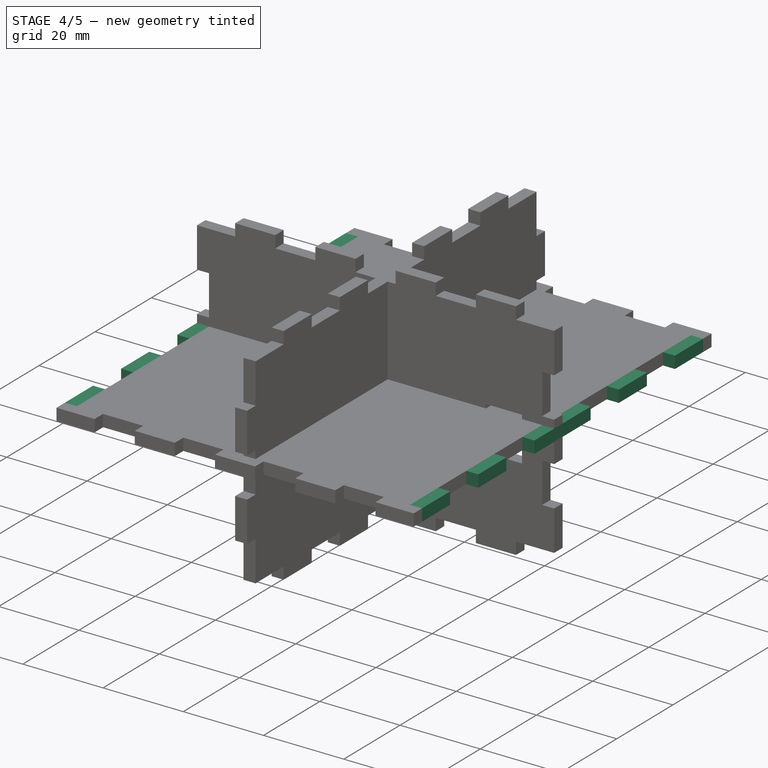
[diagram: stage 4 of 5 — iso view after this stage's code; geometry added in this stage tinted green]
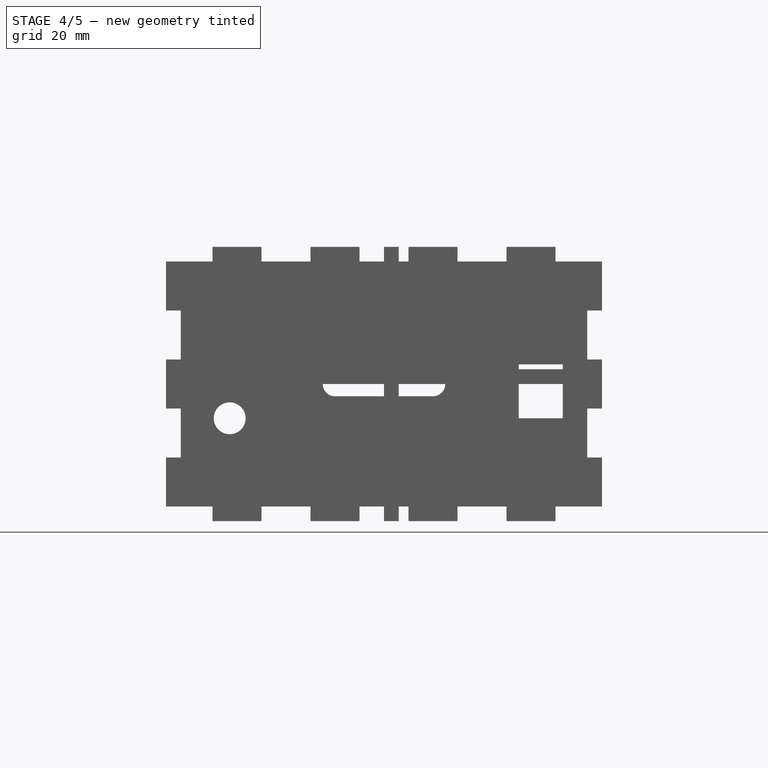
[diagram: stage 4 of 5 — front view after this stage's code; geometry added in this stage tinted green]
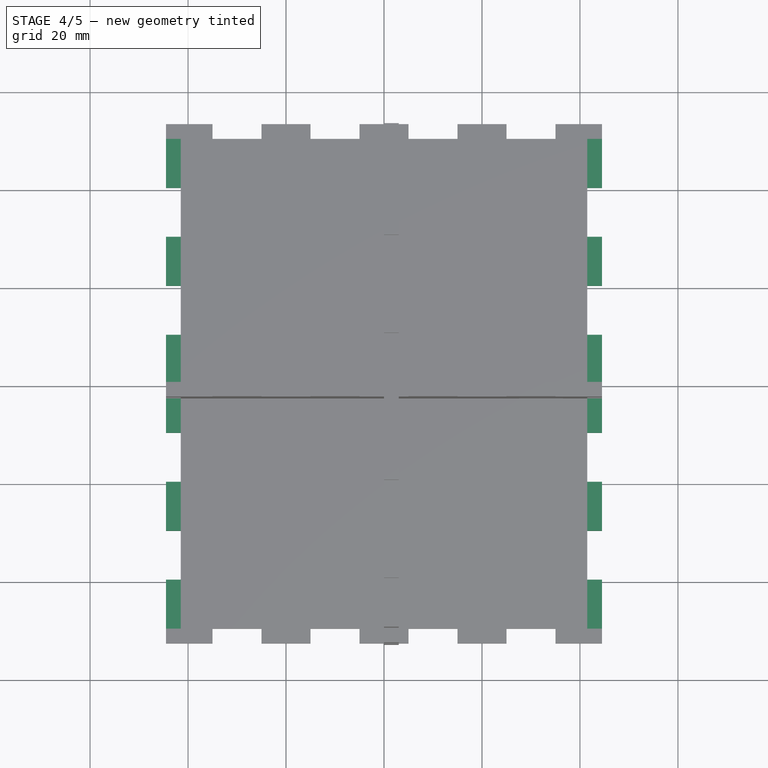
[diagram: stage 4 of 5 — top view after this stage's code; geometry added in this stage tinted green]
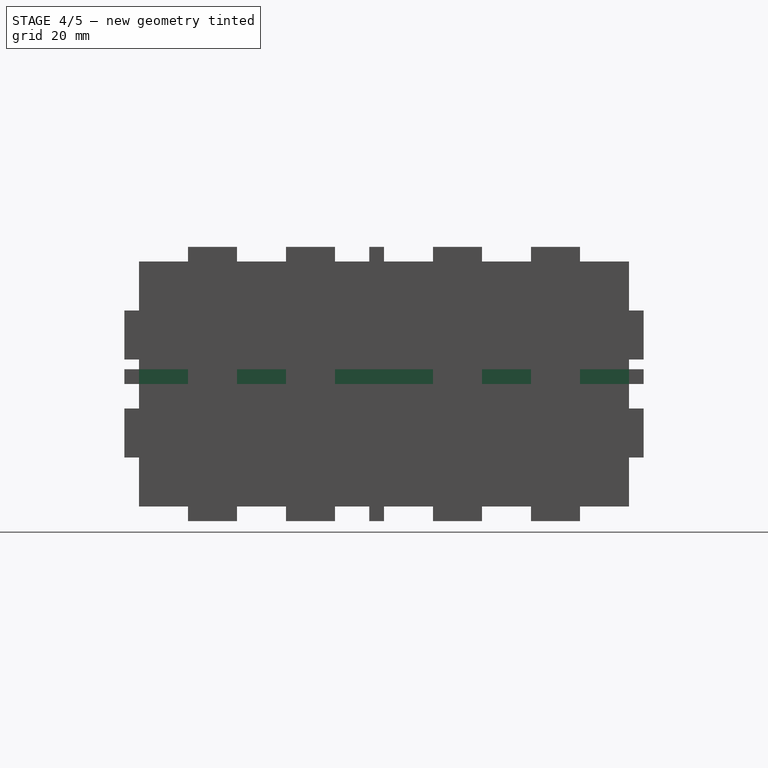
[diagram: stage 4 of 5 — right view after this stage's code; geometry added in this stage tinted green]
FEATURE [Sketcher::SketchObject] Sketch008
  ExternalGeometry = -> [MultiTransform004]
  FullyConstrained = true
  MapMode = 5
  Placement = pos=(41.5,0,0) rot=(0.57735,0.57735,0.57735;2.0944rad)
  Support = -> [MultiTransform004]
  sketch-geometry (12):
    g0: LineSegment StartX=-53 StartY=3 StartZ=0 EndX=-40 EndY=3 EndZ=0
    g1: LineSegment StartX=-40 StartY=3 StartZ=0 EndX=-40 EndY=0 EndZ=0
    g2: LineSegment StartX=-40 StartY=0 StartZ=0 EndX=-53 EndY=0 EndZ=0
    g3: LineSegment StartX=-53 StartY=0 StartZ=0 EndX=-53 EndY=3 EndZ=0
    g4: LineSegment StartX=-30 StartY=3 StartZ=0 EndX=-20 EndY=3 EndZ=0
    g5: LineSegment StartX=-20 StartY=3 StartZ=0 EndX=-20 EndY=0 EndZ=0
    g6: LineSegment StartX=-20 StartY=0 StartZ=0 EndX=-30 EndY=0 EndZ=0
    g7: LineSegment StartX=-30 StartY=0 StartZ=0 EndX=-30 EndY=3 EndZ=0
    g8: LineSegment StartX=-10 StartY=3 StartZ=0 EndX=0 EndY=3 EndZ=0
    g9: LineSegment StartX=0 StartY=3 StartZ=0 EndX=0 EndY=0 EndZ=0
    g10: LineSegment StartX=0 StartY=0 StartZ=0 EndX=-10 EndY=0 EndZ=0
    g11: LineSegment StartX=-10 StartY=0 StartZ=0 EndX=-10 EndY=3 EndZ=0
  constraints (35):
    c: Coincident(g0,g1)
    c: Coincident(g1,g2)
    c: Coincident(g2,g3)
    c: Coincident(g3,g0)
    c: Horizontal(g0)
    c: Horizontal(g2)
    c: Vertical(g1)
    c: Vertical(g3)
    c: Coincident(g4,g5)
    c: Coincident(g5,g6)
    c: Coincident(g6,g7)
    c: Coincident(g7,g4)
    c: Horizontal(g4)
    c: Horizontal(g6)
    c: Vertical(g5)
    c: Vertical(g7)
    c: Coincident(g8,g9)
    c: Coincident(g9,g10)
    c: Coincident(g10,g11)
    c: Coincident(g11,g8)
    c: Horizontal(g8)
    c: Horizontal(g10)
    c: Vertical(g9)
    c: Vertical(g11)
    c: Coincident(g9,g-1)
    c: Horizontal(g10,g5)
    c: Horizontal(g6,g1)
    c: DistanceX(g8,g8) = 10
    c: DistanceX(g4,g8) = 10
    c: DistanceX(g4,g4) = 10
    c: DistanceX(g0,g4) = 10
    c: DistanceX(g0,g0) = 13
    c: Horizontal(g0,g4)
    c: Horizontal(g8,g4)
    c: PointOnObject(g8,g-3)
FEATURE [PartDesign::Pad] Pad008
  BaseFeature = -> MultiTransform004
  ClaimChildren = false
  Direction = (1,1,1)
  Fit = 0
  FitJoin = 0
  InnerFit = 0
  InnerFitJoin = 0
  InnerTaperAngle = 0
  InnerTaperAngleRev = 0
  Length = 3
  Length2 = 100
  Linearize = true
  NewSolid = false
  Profile = -> Sketch008
  Suppress = false
  Type = 0
  _ProfileBasedVersion = 1
FEATURE [PartDesign::Mirrored] Mirrored006
  CopyShape = false
  MirrorPlane = -> Sketch008 [V_Axis]
  NewSolid = false
  ParallelTransform = true
  SubTransform = true
  Suppress = false
FEATURE [PartDesign::Mirrored] Mirrored007
  CopyShape = false
  MirrorPlane = -> YZ_Plane001
  NewSolid = false
  ParallelTransform = true
  SubTransform = true
  Suppress = false
FEATURE [PartDesign::MultiTransform] MultiTransform005
  BaseFeature = -> Pad008
  CopyShape = false
  NewSolid = false
  OriginalSubs = -> [Pad008]
  Originals = -> [Pad008]
  ParallelTransform = true
  SubTransform = true
  Suppress = false
  Transformations = -> [Mirrored006,Mirrored007]
FEATURE [PartDesign::Body] Body003  label="Right Face"
  AutoGroupSolids = false
  ExportMode = 0
  Group = -> [Sketch009,Pad009,Sketch010,Pad010,MultiTransform006,Mirrored008,Mirrored009,Sketch011,Pad011,MultiTransform007,Mirrored010,Mirrored011]
  Origin = -> Origin004
  Placement = pos=(41.5,0,0) rot=(0,0,1;0rad)
  Tip = -> MultiTransform007
  _ExportChildren = -> [Pad009,Pad010,MultiTransform006,Pad011,MultiTransform007]
  _GroupVersion = 1
FEATURE [PartDesign::Mirrored] Mirrored013
  CopyShape = false
  MirrorPlane = -> XZ_Plane004
  NewSolid = false
  ParallelTransform = true
  SubTransform = true
  Suppress = false
FEATURE [PartDesign::Mirrored] Mirrored015
  CopyShape = false
  MirrorPlane = -> YZ_Plane004
  NewSolid = false
  ParallelTransform = true
  SubTransform = true
  Suppress = false
FEATURE [Sketcher::SketchObject] Sketch012
  FullyConstrained = true
  MapMode = 5
  Support = -> [XY_Plane004]
  sketch-geometry (4):
    g0: LineSegment StartX=-41.5 StartY=50 StartZ=0 EndX=41.5 EndY=50 EndZ=0
    g1: LineSegment StartX=41.5 StartY=50 StartZ=0 EndX=41.5 EndY=-50 EndZ=0
    g2: LineSegment StartX=41.5 StartY=-50 StartZ=0 EndX=-41.5 EndY=-50 EndZ=0
    g3: LineSegment StartX=-41.5 StartY=-50 StartZ=0 EndX=-41.5 EndY=50 EndZ=0
  constraints (11):
    c: Coincident(g0,g1)
    c: Coincident(g1,g2)
    c: Coincident(g2,g3)
    c: Coincident(g3,g0)
    c: Horizontal(g0)
    c: Horizontal(g2)
    c: Vertical(g1)
    c: Vertical(g3)
    c: Symmetric(g1,g0,g-1)
    c: DistanceX(g0,g0) = 83
    c: DistanceY(g1,g1) = 100
FEATURE [PartDesign::Pad] Pad012
  ClaimChildren = false
  Direction = (1,1,1)
  Fit = 0
  FitJoin = 0
  InnerFit = 0
  InnerFitJoin = 0
  InnerTaperAngle = 0
  InnerTaperAngleRev = 0
  Length = 3
  Length2 = 100
  Linearize = true
  NewSolid = false
  Profile = -> Sketch012
  Suppress = false
  Type = 0
  _ProfileBasedVersion = 1
FEATURE [Sketcher::SketchObject] Sketch013
  ExternalGeometry = -> [Pad012]
  FullyConstrained = true
  MapMode = 5
  Placement = pos=(0,-50,0) rot=(1,0,0;1.5708rad)
  Support = -> [Pad012]
  sketch-geometry (12):
    g0: LineSegment StartX=0 StartY=0 StartZ=0 EndX=5 EndY=0 EndZ=0
    g1: LineSegment StartX=5 StartY=0 StartZ=0 EndX=5 EndY=3 EndZ=0
    g2: LineSegment StartX=5 StartY=3 StartZ=0 EndX=0 EndY=3 EndZ=0
    g3: LineSegment StartX=0 StartY=3 StartZ=0 EndX=0 EndY=0 EndZ=0
    g4: LineSegment StartX=15 StartY=0 StartZ=0 EndX=25 EndY=0 EndZ=0
    g5: LineSegment StartX=25 StartY=0 StartZ=0 EndX=25 EndY=3 EndZ=0
    g6: LineSegment StartX=25 StartY=3 StartZ=0 EndX=15 EndY=3 EndZ=0
    g7: LineSegment StartX=15 StartY=3 StartZ=0 EndX=15 EndY=0 EndZ=0
    g8: LineSegment StartX=35 StartY=0 StartZ=0 EndX=44.5 EndY=0 EndZ=0
    g9: LineSegment StartX=44.5 StartY=0 StartZ=0 EndX=44.5 EndY=3 EndZ=0
    g10: LineSegment StartX=44.5 StartY=3 StartZ=0 EndX=35 EndY=3 EndZ=0
    g11: LineSegment StartX=35 StartY=3 StartZ=0 EndX=35 EndY=0 EndZ=0
  constraints (35):
    c: Coincident(g0,g1)
    c: Coincident(g1,g2)
    c: Coincident(g2,g3)
    c: Coincident(g3,g0)
    c: Horizontal(g0)
    c: Horizontal(g2)
    c: Vertical(g1)
    c: Vertical(g3)
    c: Coincident(g4,g5)
    c: Coincident(g5,g6)
    c: Coincident(g6,g7)
    c: Coincident(g7,g4)
    c: Horizontal(g4)
    c: Horizontal(g6)
    c: Vertical(g5)
    c: Vertical(g7)
    c: Coincident(g8,g9)
    c: Coincident(g9,g10)
    c: Coincident(g10,g11)
    c: Coincident(g11,g8)
    c: Horizontal(g8)
    c: Horizontal(g10)
    c: Vertical(g9)
    c: Vertical(g11)
    c: PointOnObject(g9,g-4)
    c: PointOnObject(g8,g-3)
    c: PointOnObject(g5,g-4)
    c: PointOnObject(g4,g-3)
    c: PointOnObject(g1,g-4)
    c: Coincident(g0,g-1)
    c: DistanceX(g0,g0) = 5
    c: DistanceX(g0,g4) = 10
    c: DistanceX(g4,g4) = 10
    c: DistanceX(g4,g8) = 10
    c: DistanceX(g8,g8) = 9.5
FEATURE [PartDesign::Mirrored] Mirrored012
  CopyShape = false
  MirrorPlane = -> Sketch013 [V_Axis]
  NewSolid = false
  ParallelTransform = true
  SubTransform = true
  Suppress = false
FEATURE [PartDesign::Pad] Pad013
  BaseFeature = -> Pad012
  ClaimChildren = false
  Direction = (1,1,1)
  Fit = 0
  FitJoin = 0
  InnerFit = 0
  InnerFitJoin = 0
  InnerTaperAngle = 0
  InnerTaperAngleRev = 0
  Length = 3
  Length2 = 100
  Linearize = true
  NewSolid = false
  Profile = -> Sketch013
  Suppress = false
  Type = 0
  _ProfileBasedVersion = 1
FEATURE [PartDesign::MultiTransform] MultiTransform008
  BaseFeature = -> Pad013
  CopyShape = false
  NewSolid = false
  OriginalSubs = -> [Pad013]
  Originals = -> [Pad013]
  ParallelTransform = true
  SubTransform = true
  Suppress = false
  Transformations = -> [Mirrored012,Mirrored013]
FEATURE [Sketcher::SketchObject] Sketch014
  ExternalGeometry = -> [MultiTransform008]
  FullyConstrained = true
  MapMode = 5
  Placement = pos=(41.5,0,0) rot=(0.57735,0.57735,0.57735;2.0944rad)
  Support = -> [MultiTransform008]
  sketch-geometry (12):
    g0: LineSegment StartX=-53 StartY=3 StartZ=0 EndX=-40 EndY=3 EndZ=0
    g1: LineSegment StartX=-40 StartY=3 StartZ=0 EndX=-40 EndY=0 EndZ=0
    g2: LineSegment StartX=-40 StartY=0 StartZ=0 EndX=-53 EndY=0 EndZ=0
    g3: LineSegment StartX=-53 StartY=0 StartZ=0 EndX=-53 EndY=3 EndZ=0
    g4: LineSegment StartX=-30 StartY=3 StartZ=0 EndX=-20 EndY=3 EndZ=0
    g5: LineSegment StartX=-20 StartY=3 StartZ=0 EndX=-20 EndY=0 EndZ=0
    g6: LineSegment StartX=-20 StartY=0 StartZ=0 EndX=-30 EndY=0 EndZ=0
    g7: LineSegment StartX=-30 StartY=0 StartZ=0 EndX=-30 EndY=3 EndZ=0
    g8: LineSegment StartX=-10 StartY=3 StartZ=0 EndX=0 EndY=3 EndZ=0
    g9: LineSegment StartX=0 StartY=3 StartZ=0 EndX=0 EndY=0 EndZ=0
    g10: LineSegment StartX=0 StartY=0 StartZ=0 EndX=-10 EndY=0 EndZ=0
    g11: LineSegment StartX=-10 StartY=0 StartZ=0 EndX=-10 EndY=3 EndZ=0
  constraints (35):
    c: Coincident(g0,g1)
    c: Coincident(g1,g2)
    c: Coincident(g2,g3)
    c: Coincident(g3,g0)
    c: Horizontal(g0)
    c: Horizontal(g2)
    c: Vertical(g1)
    c: Vertical(g3)
    c: Coincident(g4,g5)
    c: Coincident(g5,g6)
    c: Coincident(g6,g7)
    c: Coincident(g7,g4)
    c: Horizontal(g4)
    c: Horizontal(g6)
    c: Vertical(g5)
    c: Vertical(g7)
    c: Coincident(g8,g9)
    c: Coincident(g9,g10)
    c: Coincident(g10,g11)
    c: Coincident(g11,g8)
    c: Horizontal(g8)
    c: Horizontal(g10)
    c: Vertical(g9)
    c: Vertical(g11)
    c: Coincident(g9,g-1)
    c: Horizontal(g10,g5)
    c: Horizontal(g6,g1)
    c: DistanceX(g8,g8) = 10
    c: DistanceX(g4,g8) = 10
    c: DistanceX(g4,g4) = 10
    c: DistanceX(g0,g4) = 10
    c: DistanceX(g0,g0) = 13
    c: Horizontal(g0,g4)
    c: Horizontal(g8,g4)
    c: PointOnObject(g8,g-3)
FEATURE [PartDesign::Mirrored] Mirrored014
  CopyShape = false
  MirrorPlane = -> Sketch014 [V_Axis]
  NewSolid = false
  ParallelTransform = true
  SubTransform = true
  Suppress = false
FEATURE [PartDesign::Pad] Pad014
  BaseFeature = -> MultiTransform008
  ClaimChildren = false
  Direction = (1,1,1)
  Fit = 0
  FitJoin = 0
  InnerFit = 0
  InnerFitJoin = 0
  InnerTaperAngle = 0
  InnerTaperAngleRev = 0
  Length = 3
  Length2 = 100
  Linearize = true
  NewSolid = false
  Profile = -> Sketch014
  Suppress = false
  Type = 0
  _ProfileBasedVersion = 1
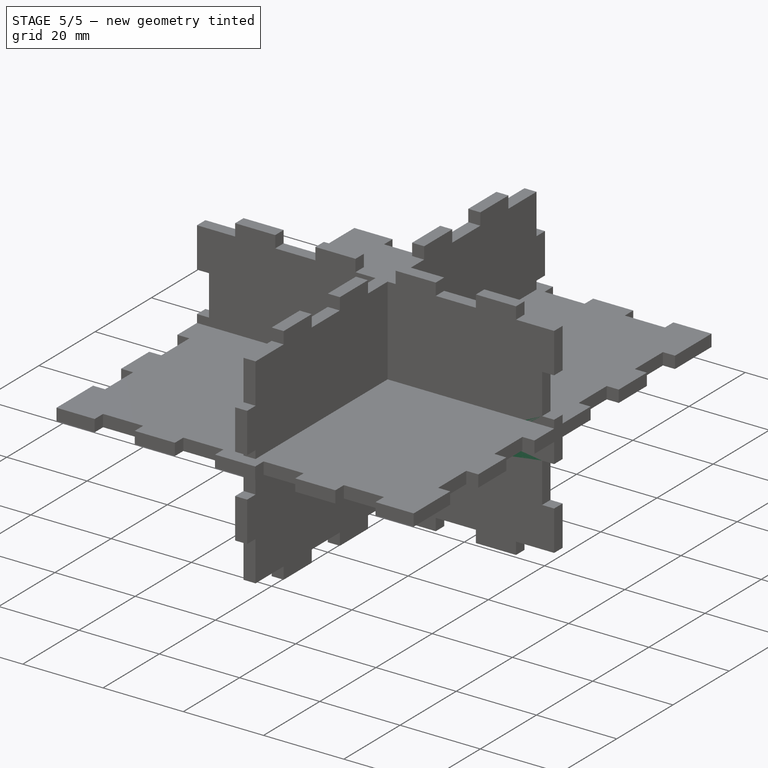
[diagram: stage 5 of 5 — iso view after this stage's code; geometry added in this stage tinted green]
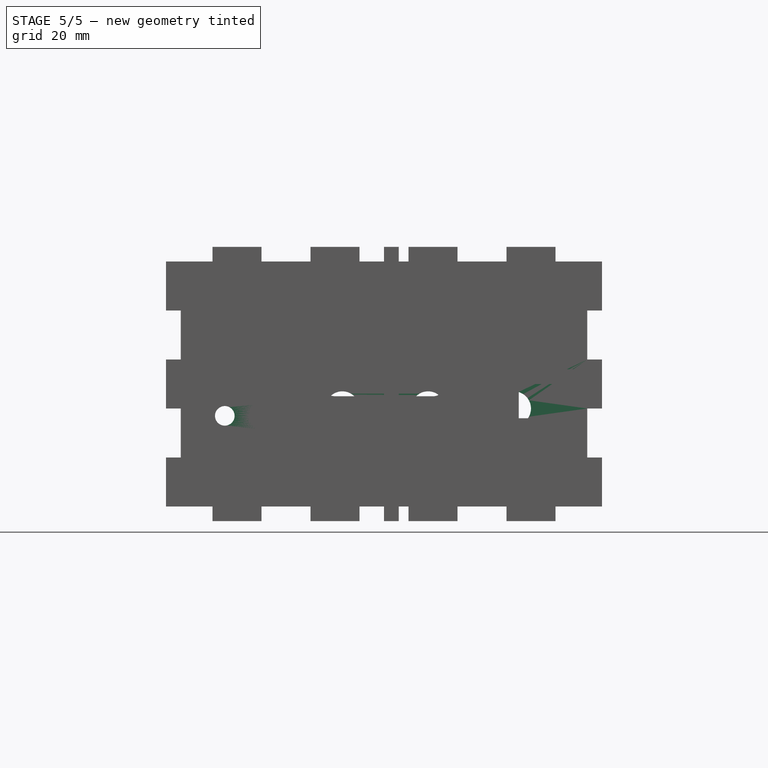
[diagram: stage 5 of 5 — front view after this stage's code; geometry added in this stage tinted green]
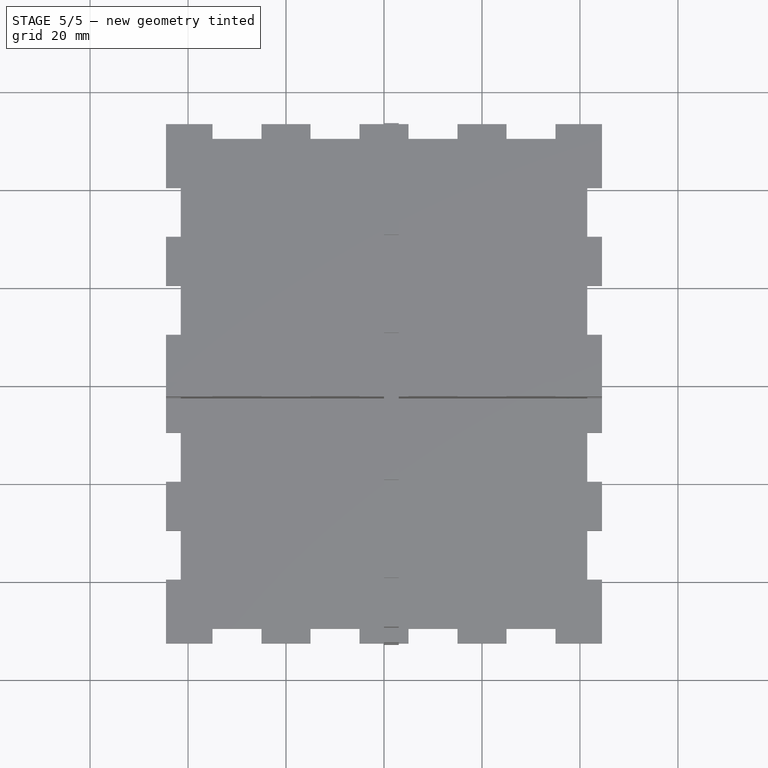
[diagram: stage 5 of 5 — top view after this stage's code; geometry added in this stage tinted green]
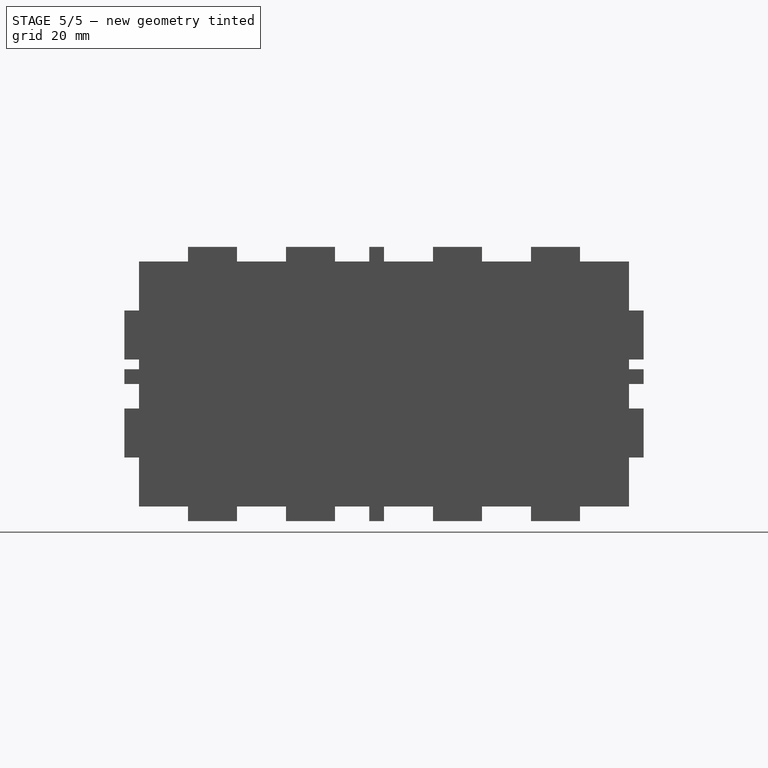
[diagram: stage 5 of 5 — right view after this stage's code; geometry added in this stage tinted green]
FEATURE [Sketcher::SketchObject] Sketch
  FullyConstrained = true
  MapMode = 5
  Placement = pos=(0,0,0) rot=(1,0,0;1.5708rad)
  Support = -> [XZ_Plane]
  sketch-geometry (9):
    g0: LineSegment StartX=-41.5 StartY=25 StartZ=0 EndX=41.5 EndY=25 EndZ=0
    g1: LineSegment StartX=41.5 StartY=25 StartZ=0 EndX=41.5 EndY=-25 EndZ=0
    g2: LineSegment StartX=41.5 StartY=-25 StartZ=0 EndX=-41.5 EndY=-25 EndZ=0
    g3: LineSegment StartX=-41.5 StartY=-25 StartZ=0 EndX=-41.5 EndY=25 EndZ=0
    g4: Circle CenterX=-24.5 CenterY=-6.5 CenterZ=0 NormalX=0 NormalY=0 NormalZ=1 AngleXU=0 Radius=3
    g5: Circle CenterX=26.5 CenterY=-5 CenterZ=0 NormalX=0 NormalY=0 NormalZ=1 AngleXU=0 Radius=3.5
    g6: Circle CenterX=9 CenterY=-5 CenterZ=0 NormalX=0 NormalY=0 NormalZ=1 AngleXU=0 Radius=3.5
    g7: Circle CenterX=-32.5 CenterY=-6.5 CenterZ=0 NormalX=0 NormalY=0 NormalZ=1 AngleXU=0 Radius=2
    g8: Circle CenterX=-8.5 CenterY=-5 CenterZ=0 NormalX=0 NormalY=0 NormalZ=1 AngleXU=0 Radius=3.5
  constraints (26):
    c: Coincident(g0,g1)
    c: Coincident(g1,g2)
    c: Coincident(g2,g3)
    c: Coincident(g3,g0)
    c: Horizontal(g0)
    c: Vertical(g1)
    c: Vertical(g3)
    c: Equal(g6,g8)
    c: Equal(g8,g5)
    c: Diameter(g8) = 7
    c: Horizontal(g8,g6)
    c: Horizontal(g6,g5)
    c: DistanceX(g8,g6) = 17.5
    c: DistanceX(g6,g5) = 17.5
    c: DistanceX(g5,g1) = 15
    c: DistanceX(g2,g4) = 17
    c: DistanceX(g2,g7) = 9
    c: DistanceX(g2,g2) = 83
    c: DistanceY(g1,g5) = 20
    c: DistanceY(g2,g4) = 18.5
    c: Horizontal(g7,g4)
    c: Diameter(g7) = 4
    c: Diameter(g4) = 6
    c: DistanceY(g1,g1) = 50
    c: Symmetric(g1,g2,g-2)
    c: DistanceY(g-1,g0) = 25
FEATURE [PartDesign::Pad] Pad
  ClaimChildren = false
  Direction = (1,1,1)
  Fit = 0
  FitJoin = 0
  InnerFit = 0
  InnerFitJoin = 0
  InnerTaperAngle = 0
  InnerTaperAngleRev = 0
  Length = 3
  Length2 = 100
  Linearize = true
  NewSolid = false
  Placement = pos=(0,0,0) rot=(1,0,0;1.5708rad)
  Profile = -> Sketch
  Suppress = false
  Type = 0
  _ProfileBasedVersion = 1
FEATURE [Sketcher::SketchObject] Sketch001
  ExternalGeometry = -> [Pad]
  FullyConstrained = true
  MapMode = 5
  Placement = pos=(41.5,0,0) rot=(0.707107,0,0.707107;3.14159rad)
  Support = -> [Pad]
  sketch-geometry (4):
    g0: LineSegment StartX=-25 StartY=3 StartZ=0 EndX=-15 EndY=3 EndZ=0
    g1: LineSegment StartX=-15 StartY=3 StartZ=0 EndX=-15 EndY=9.8e-15 EndZ=0
    g2: LineSegment StartX=-15 StartY=9.8e-15 StartZ=0 EndX=-25 EndY=9.8e-15 EndZ=0
    g3: LineSegment StartX=-25 StartY=9.8e-15 StartZ=0 EndX=-25 EndY=3 EndZ=0
  constraints (11):
    c: Coincident(g0,g1)
    c: Coincident(g1,g2)
    c: Coincident(g2,g3)
    c: Coincident(g3,g0)
    c: Horizontal(g0)
    c: Horizontal(g2)
    c: Vertical(g1)
    c: Vertical(g3)
    c: Coincident(g0,g-3)
    c: PointOnObject(g1,g-4)
    c: DistanceX(g0,g0) = 10
FEATURE [PartDesign::Pad] Pad001
  BaseFeature = -> Pad
  ClaimChildren = false
  Direction = (1,1,1)
  Fit = 0
  FitJoin = 0
  InnerFit = 0
  InnerFitJoin = 0
  InnerTaperAngle = 0
  InnerTaperAngleRev = 0
  Length = 3
  Length2 = 100
  Linearize = true
  NewSolid = false
  Placement = pos=(0,0,0) rot=(1,0,0;1.5708rad)
  Profile = -> Sketch001
  Suppress = false
  Type = 0
  _ProfileBasedVersion = 1
FEATURE [PartDesign::Mirrored] Mirrored
  CopyShape = false
  MirrorPlane = -> YZ_Plane
  NewSolid = false
  ParallelTransform = true
  Placement = pos=(0,0,0) rot=(1,0,0;1.5708rad)
  SubTransform = true
  Suppress = false
FEATURE [PartDesign::LinearPattern] LinearPattern
  CopyShape = false
  Direction = -> Sketch001 [H_Axis]
  Length = 40
  NewSolid = false
  Occurrences = 3
  ParallelTransform = true
  Placement = pos=(0,0,0) rot=(1,0,0;1.5708rad)
  SubTransform = true
  Suppress = false
FEATURE [PartDesign::MultiTransform] MultiTransform
  BaseFeature = -> Pad001
  CopyShape = false
  NewSolid = false
  OriginalSubs = -> [Pad001]
  Originals = -> [Pad001]
  ParallelTransform = true
  Placement = pos=(0,0,0) rot=(1,0,0;1.5708rad)
  SubTransform = true
  Suppress = false
  Transformations = -> [Mirrored,LinearPattern]
FEATURE [Sketcher::SketchObject] Sketch002
  ExternalGeometry = -> [MultiTransform]
  FullyConstrained = true
  MapMode = 5
  Placement = pos=(0,-5.6e-15,25) rot=(0,0,1;3.14159rad)
  Support = -> [MultiTransform]
  sketch-geometry (4):
    g0: LineSegment StartX=-35 StartY=3 StartZ=0 EndX=-25 EndY=3 EndZ=0
    g1: LineSegment StartX=-25 StartY=3 StartZ=0 EndX=-25 EndY=3.2e-14 EndZ=0
    g2: LineSegment StartX=-25 StartY=3.2e-14 StartZ=0 EndX=-35 EndY=3.2e-14 EndZ=0
    g3: LineSegment StartX=-35 StartY=3.2e-14 StartZ=0 EndX=-35 EndY=3 EndZ=0
  constraints (12):
    c: Coincident(g0,g1)
    c: Coincident(g1,g2)
    c: Coincident(g2,g3)
    c: Coincident(g3,g0)
    c: Horizontal(g0)
    c: Horizontal(g2)
    c: Vertical(g1)
    c: Vertical(g3)
    c: Horizontal(g0,g-3)
    c: Horizontal(g2,g-3)
    c: DistanceX(g0,g0) = 10
    c: DistanceX(g-3,g0) = 9.5
FEATURE [PartDesign::Pad] Pad002
  BaseFeature = -> MultiTransform
  ClaimChildren = false
  Direction = (1,1,1)
  Fit = 0
  FitJoin = 0
  InnerFit = 0
  InnerFitJoin = 0
  InnerTaperAngle = 0
  InnerTaperAngleRev = 0
  Length = 3
  Length2 = 100
  Linearize = true
  NewSolid = false
  Placement = pos=(0,0,0) rot=(1,0,0;1.5708rad)
  Profile = -> Sketch002
  Suppress = false
  Type = 0
  _ProfileBasedVersion = 1
FEATURE [PartDesign::Mirrored] Mirrored001
  CopyShape = false
  MirrorPlane = -> XY_Plane
  NewSolid = false
  ParallelTransform = true
  Placement = pos=(0,0,0) rot=(1,0,0;1.5708rad)
  SubTransform = true
  Suppress = false
FEATURE [PartDesign::LinearPattern] LinearPattern001
  CopyShape = false
  Direction = -> X_Axis
  Length = 60
  NewSolid = false
  Occurrences = 4
  ParallelTransform = true
  Placement = pos=(0,0,0) rot=(1,0,0;1.5708rad)
  Reversed = true
  SubTransform = true
  Suppress = false
FEATURE [PartDesign::MultiTransform] MultiTransform001
  BaseFeature = -> Pad002
  CopyShape = false
  NewSolid = false
  OriginalSubs = -> [Pad002]
  Originals = -> [Pad002]
  ParallelTransform = true
  Placement = pos=(0,0,0) rot=(1,0,0;1.5708rad)
  SubTransform = true
  Suppress = false
  Transformations = -> [Mirrored001,LinearPattern001]
FEATURE [PartDesign::MultiTransform] MultiTransform009
  BaseFeature = -> Pad014
  CopyShape = false
  NewSolid = false
  OriginalSubs = -> [Pad014]
  Originals = -> [Pad014]
  ParallelTransform = true
  SubTransform = true
  Suppress = false
  Transformations = -> [Mirrored014,Mirrored015]
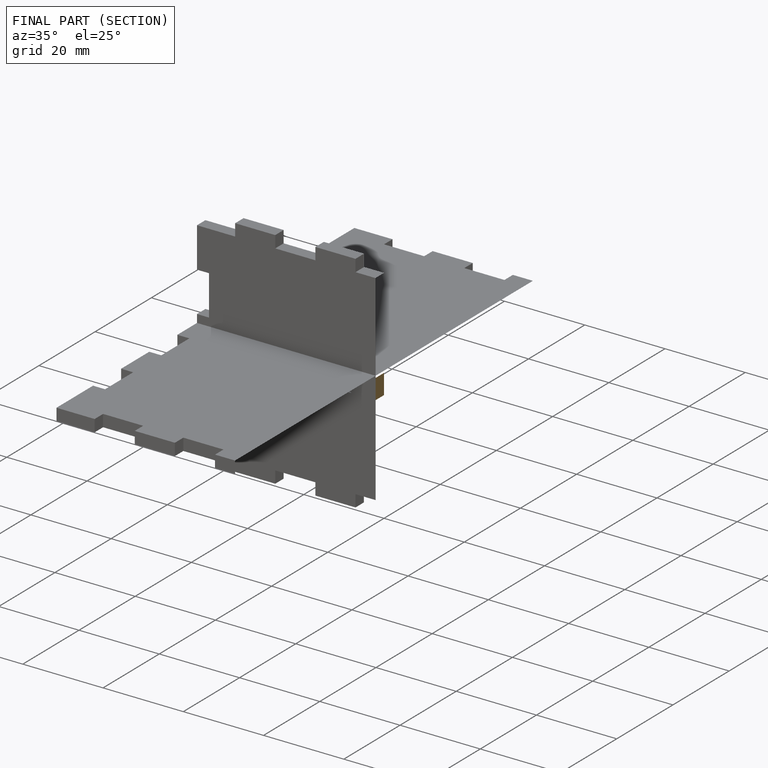
[diagram: finished part — half-section view (interior)]
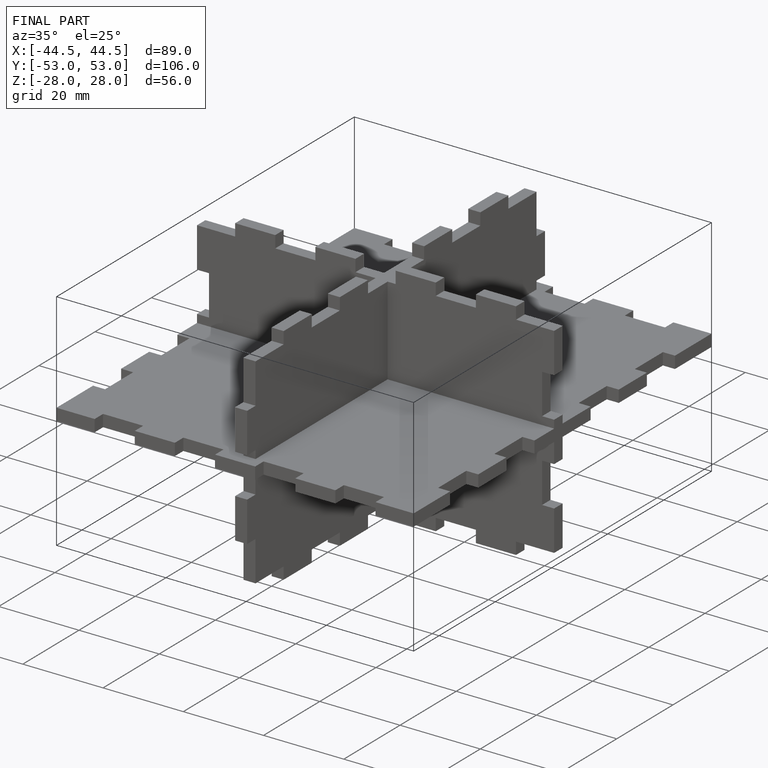
[diagram: finished part — iso view with bounding-box wireframe]
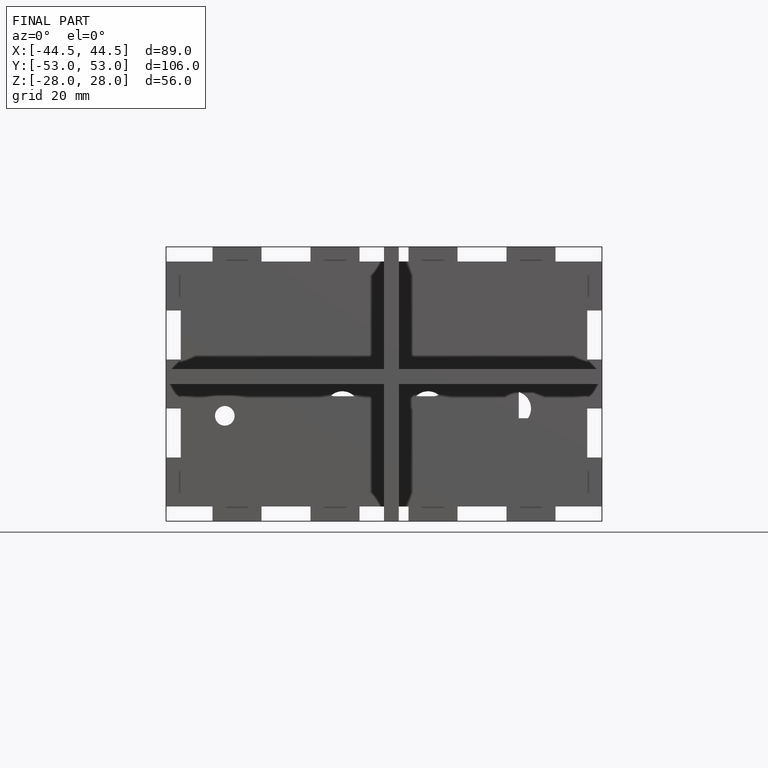
[diagram: finished part — front view with bounding-box wireframe]
